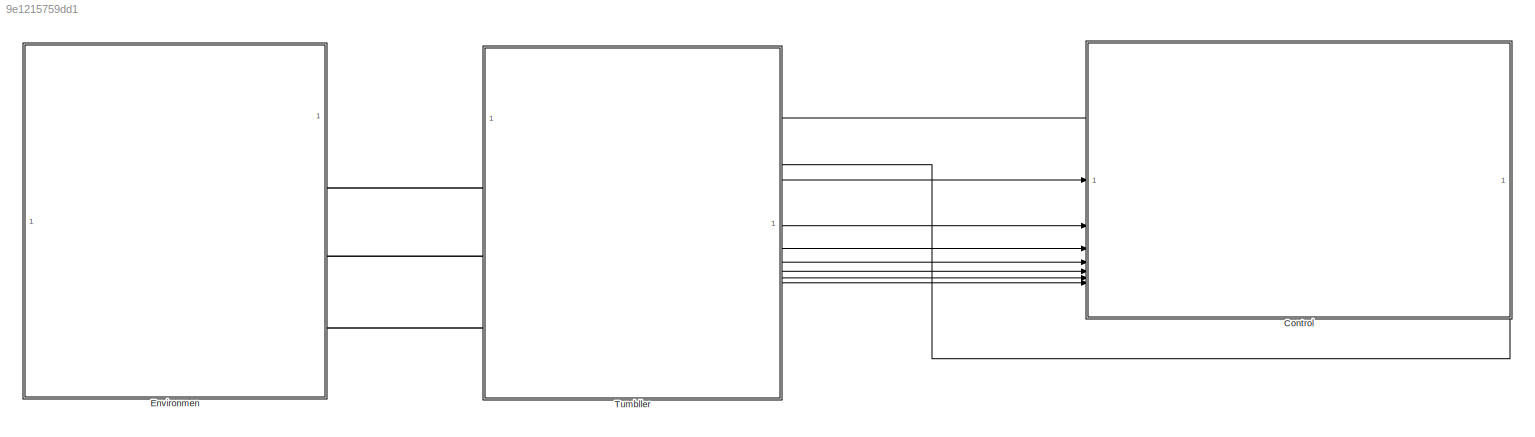
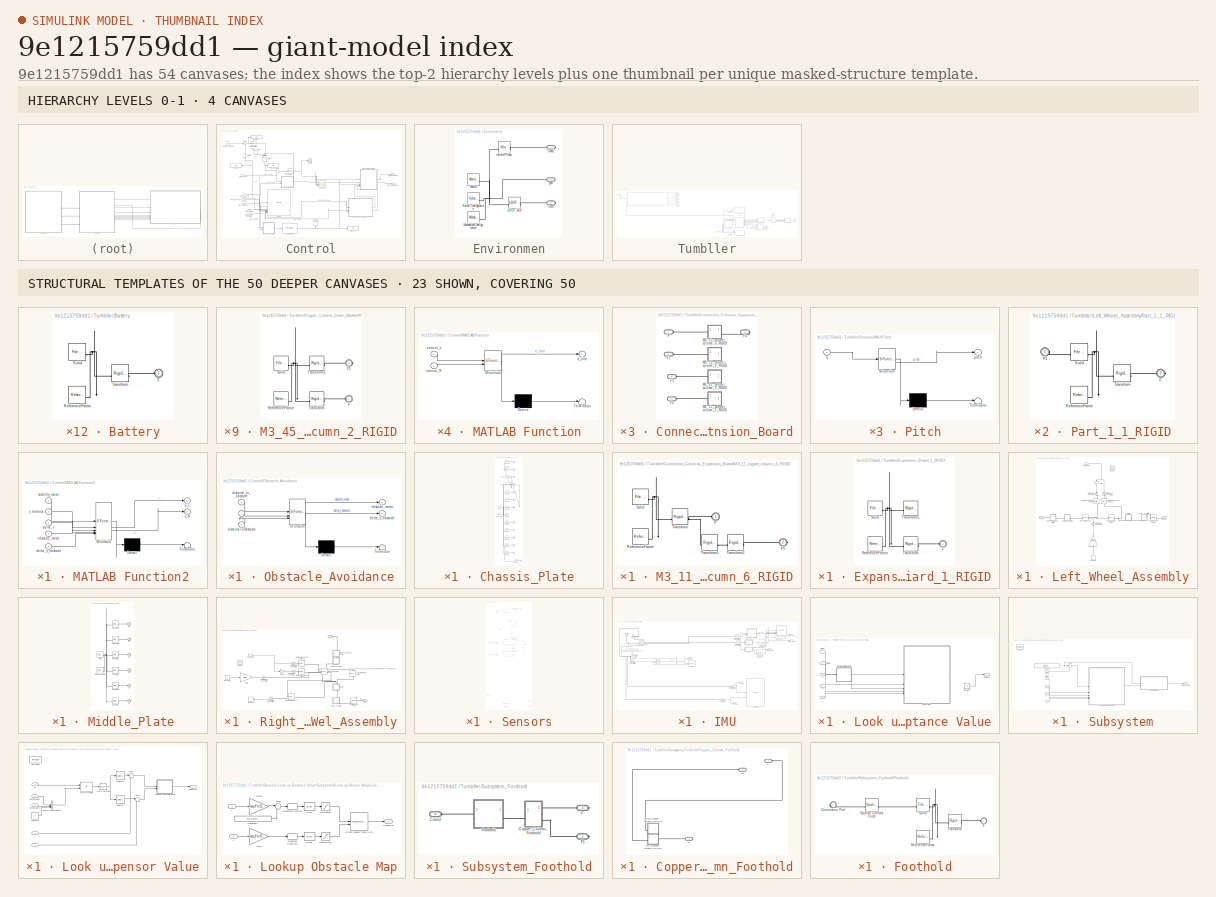
[diagram: thumbnail index - top-2 hierarchy levels (4 canvases) + 23 structural-template representatives of the remaining 50 canvases]
MODEL slx_9e1215759dd1
KIND model
CONFIG AbsTol = auto
CONFIG EnableMultiTasking = off
CONFIG FixedStep = 0.01
CONFIG MaxStep = auto
CONFIG MinStep = auto
CONFIG RelTol = 1e-3
CONFIG SampleTimeConstraint = Unconstrained
CONFIG SolverName = VariableStepAuto
CONFIG StartTime = 0.0
CONFIG StopTime = 300.0
WORKSPACE source: external: MATLAB File  (data not in archive)
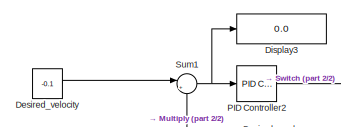
[diagram: Control - part 1/2, top left region]
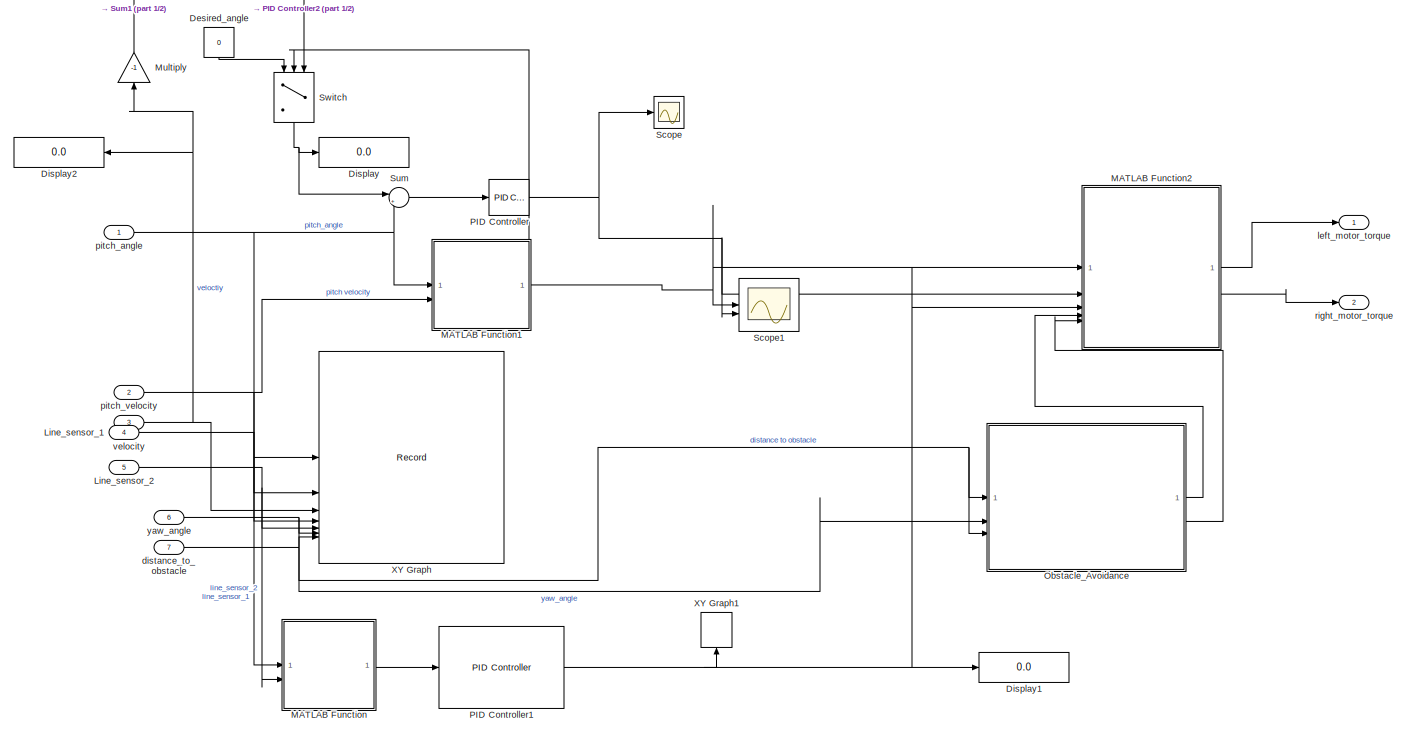
[diagram: Control - part 2/2, most of the canvas]
BLOCK [SubSystem] Control
  PortSchema = {"entries":[{"content":{"sides":[{"content":{"connectorIds":["In1","In2","In3","In4","In5","In6","In7"]},"type":"ConnectorPlacement.EquallySpacedRectSide","uuid":"f714b2c0-4a2a-45d5-ad92-afc10d621f55"},{"content":{"side":"RIGHT"},"type":"ConnectorPlacement.EquallySpacedRectSide","uuid":"32b7e455-4cd7-4a82-8941-30c6734f67e4"},{"content":{"side":"TOP"},"type":"ConnectorPlacement.EquallySpacedRectSid...<+391ch>
BLOCK [Constant] Control/Desired_angle
  NameLocation = top
  Value = 0
BLOCK [Constant] Control/Desired_velocity
  Value = -0.1
BLOCK [Display] Control/Display
  Decimation = 1
BLOCK [Display] Control/Display1
  Decimation = 1
BLOCK [Display] Control/Display2
  Decimation = 1
  NameLocation = top
BLOCK [Display] Control/Display3
  Decimation = 1
BLOCK [Inport] Control/Line_sensor_1
  Port = 4
BLOCK [Inport] Control/Line_sensor_2
  Port = 5
BLOCK [SubSystem] Control/MATLAB Function
  ErrorFcn = Stateflow.Translate.translate
  PermitHierarchicalResolution = ExplicitOnly
  SFBlockType = MATLAB Function
  TreatAsAtomicUnit = on
BLOCK [Demux] Control/MATLAB Function/ Demux 
  Outputs = 1
BLOCK [S-Function] Control/MATLAB Function/ SFunction 
  EnableBusSupport = off
  FunctionName = sf_sfun
  PortCounts = [2 2]
  SFcnIsStateOwnerBlock = off
  SFunctionDeploymentMode = off
  Tag = Stateflow S-Function 3
BLOCK [Terminator] Control/MATLAB Function/ Terminator 
BLOCK [Outport] Control/MATLAB Function/e_line
BLOCK [Inport] Control/MATLAB Function/sensor_L
BLOCK [Inport] Control/MATLAB Function/sensor_R
  Port = 2
BLOCK [SubSystem] Control/MATLAB Function1
  ErrorFcn = Stateflow.Translate.translate
  PermitHierarchicalResolution = ExplicitOnly
  SFBlockType = MATLAB Function
  TreatAsAtomicUnit = on
BLOCK [Demux] Control/MATLAB Function1/ Demux 
  Outputs = 1
BLOCK [S-Function] Control/MATLAB Function1/ SFunction 
  EnableBusSupport = off
  FunctionName = sf_sfun
  PortCounts = [2 2]
  SFcnIsStateOwnerBlock = off
  SFunctionDeploymentMode = off
  Tag = Stateflow S-Function 5
BLOCK [Terminator] Control/MATLAB Function1/ Terminator 
BLOCK [Outport] Control/MATLAB Function1/mode
BLOCK [Inport] Control/MATLAB Function1/theta
BLOCK [Inport] Control/MATLAB Function1/theta_dot
  Port = 2
BLOCK [SubSystem] Control/MATLAB Function2
  ErrorFcn = Stateflow.Translate.translate
  PermitHierarchicalResolution = ExplicitOnly
  SFBlockType = MATLAB Function
  TreatAsAtomicUnit = on
BLOCK [Demux] Control/MATLAB Function2/ Demux 
  Outputs = 1
BLOCK [S-Function] Control/MATLAB Function2/ SFunction 
  EnableBusSupport = off
  FunctionName = sf_sfun
  PortCounts = [5 3]
  SFcnIsStateOwnerBlock = off
  SFunctionDeploymentMode = off
  Tag = Stateflow S-Function 7
BLOCK [Terminator] Control/MATLAB Function2/ Terminator 
BLOCK [Inport] Control/MATLAB Function2/delta_v
  Port = 3
BLOCK [Inport] Control/MATLAB Function2/delta_v_obstacle
  Port = 5
BLOCK [Inport] Control/MATLAB Function2/obstacle_mode
  Port = 4
BLOCK [Inport] Control/MATLAB Function2/stability_mode
BLOCK [Outport] Control/MATLAB Function2/v_L
BLOCK [Outport] Control/MATLAB Function2/v_R
  Port = 2
BLOCK [Inport] Control/MATLAB Function2/v_balance
  Port = 2
BLOCK [Gain] Control/Multiply
  Gain = -1
  NameLocation = right
BLOCK [SubSystem] Control/Obstacle_Avoidance
  ErrorFcn = Stateflow.Translate.translate
  PermitHierarchicalResolution = ExplicitOnly
  SFBlockType = Chart
  TreatAsAtomicUnit = on
BLOCK [Demux] Control/Obstacle_Avoidance/ Demux 
  Outputs = 1
BLOCK [S-Function] Control/Obstacle_Avoidance/ SFunction 
  EnableBusSupport = off
  FunctionName = sf_sfun
  PortCounts = [3 3]
  SFcnIsStateOwnerBlock = off
  SFunctionDeploymentMode = off
  Tag = Stateflow S-Function 6
BLOCK [Terminator] Control/Obstacle_Avoidance/ Terminator 
BLOCK [Outport] Control/Obstacle_Avoidance/delta_v_obstacle
  Port = 2
BLOCK [Inport] Control/Obstacle_Avoidance/distanceToObstacle
  Port = 3
BLOCK [Inport] Control/Obstacle_Avoidance/distance_to_obstacle
BLOCK [Outport] Control/Obstacle_Avoidance/obstacle_mode
BLOCK [Inport] Control/Obstacle_Avoidance/yaw
  Port = 2
BLOCK [Reference] Control/PID Controller  REF=slpidlib/PID Controller
  LibrarySourceBlock = simulink/Continuous/PID Controller
  SourceBlock = slpidlib/PID Controller
  SourceType = PID 1dof
BLOCK [Reference] Control/PID Controller1  REF=slpidlib/PID Controller
  LibrarySourceBlock = simulink/Continuous/PID Controller
  SourceBlock = slpidlib/PID Controller
  SourceType = PID 1dof
BLOCK [Reference] Control/PID Controller2  REF=slpidlib/PID Controller
  LibrarySourceBlock = simulink/Continuous/PID Controller
  SourceBlock = slpidlib/PID Controller
  SourceType = PID 1dof
BLOCK [Scope] Control/Scope
  ActiveDisplayYMaximum = 816.65322499526962
  ActiveDisplayYMinimum = -344.98977874570244
  Floating = off
  GraphicalSettings = {"Style":{"BackgroundColor":[0.12941176470588237,0.12941176470588237,0.12941176470588237],"AxesColor":[0.07058823529411765,0.07058823529411765,0.07058823529411765],"LabelsColor":[0.8509803921568627,0.8509803921568627,0.8509803921568627],"PreserveColors":false,"Visible":[true],"LineStyle":["-"],"LineWidth":[1.5],"BarWidth":[0.9],"LineColor":["auto"],"LineFaceAlpha":[1],"LineEdgeAlpha":[1],"Marker":...<+1988ch>
  MultipleDisplayCache = [{"MaxYLimMag":590.6877782877242,"MaxYLimReal":816.65322499526962,"MinYLimMag":0,"MinYLimReal":-344.98977874570244,"PlotAsMagnitudePhase":false,"ShowGrid":true,"ShowLegend":false,"Title":"%<SignalLabel>","YLabel":""}]
  NumInputPorts = 1
  ScopeFrameLocation = container
  WasSavedAsWebScope = on
  WindowPosition = [95.000000,94.000000,1280.000000,768.000000,]
BLOCK [Scope] Control/Scope1
  ActiveDisplayYMaximum = 3.44885358238637
  ActiveDisplayYMinimum = -2.1726826820679763
  Floating = off
  GraphicalSettings = {"AxesScalingProperties":{"AlignXAxis":"Center","AlignYAxis":"Center","AutoScaleXAxisLimits":false,"AxesScaling":"Manual","AxesScalingNumUpdates":10,"ExpandOnly":true,"ScaleAxesLimitsAtStop":false,"XAxisDataRange":100,"YAxisDataRange":80},"DisplayProperties":{"ColorOrder":["auto","auto","auto","auto","auto","auto","auto","auto","auto","auto","auto","auto","auto","auto","auto","auto","auto","auto",...<+2117ch>
  MultipleDisplayCache = [{"MaxYLimMag":10,"MaxYLimReal":3.44885358238637,"MinYLimMag":0,"MinYLimReal":-2.1726826820679763,"PlotAsMagnitudePhase":false,"ShowGrid":true,"ShowLegend":false,"Title":"%<SignalLabel>","YLabel":""}]
  NumInputPorts = 2
  ScopeFrameLocation = window
  WasSavedAsWebScope = on
  WindowPosition = [455.000000,268.000000,560.000000,420.000000,]
BLOCK [Sum] Control/Sum
  Inputs = |+-
BLOCK [Sum] Control/Sum1
  Inputs = |+-
BLOCK [Switch] Control/Switch
  Criteria = u2 ~= 0
  InputSameDT = off
  NameLocation = left
  SaturateOnIntegerOverflow = off
  ZeroCross = off
BLOCK [Record] Control/XY Graph
  CompatibilityTag = XY
  FileSettingsInternal = {"entries":[{"content":{"excelSettings":{"content":{},"type":"Streamout.ExcelSettings"},"parquetSettings":{"content":{},"type":"Streamout.ParquetSettings"}},"type":"Streamout.FileSettingStorage","uuid":""}],"packageUris":["http:\/\/schema.mathworks.com\/mf0\/streamout_blocks\/R2020a"],"version":"1.0"}  <repeated x8 — deduplicated; at blocks: XY Graph, XY Graph1, pitch_ang_g>
  FrameSettings = Vector(7)\n[0, 0, 0, 0, 0, 0, 0]
  Layout = [1 1]
  NumPorts = 7.0
  SignalsInternal = {"entries":[{"content":{"signals":[{"content":{"blockPath":[],"dimensions":[1],"domain":"","lineColor":"#a2142f","port":1,"sid":[""],"signalID":1,"signalName":"pitch_angle"},"type":"RecordBlkView.Signal","uuid":""},{"content":{"blockPath":[],"dimensions":[1],"domain":"","lineColor":"#139fff","port":2,"sid":[""],"signalID":2,"signalName":"pitch velocity"},"type":"RecordBlkView.Signal","uuid":""},{"...<+1135ch>
BLOCK [Record] Control/XY Graph1
  CompatibilityTag = XY
  FrameSettings = [0, 0]
  Layout = [1 1]
  NameLocation = right
  NumPorts = 2.0
  SignalsInternal = {"entries":[{"content":{"signals":[{"content":{"blockPath":[],"dimensions":[1],"domain":"","lineColor":"#a2142f","plots":[ 1 ],"port":1,"sid":[""],"signalID":1,"signalName":"PID Controller1"},"type":"RecordBlkView.Signal","uuid":""},{"content":{"blockPath":[],"dimensions":[1],"domain":"","lineColor":"#139fff","plots":[ 1 ],"port":2,"sid":[""],"signalID":2},"type":"RecordBlkView.Signal","uuid":""}]...<+145ch>
  VisualizationBindings = {"xyplotplugin":{"info":[{"series":[{"bindingParametersList":[{"parameter":"X-Axis","signalID":1,"signalName":"PID Controller1"},{"parameter":"Y-Axis","signalID":2,"signalName":"XY Graph1:2"}],"seriesID":0}],"subplotID":1}]}}
BLOCK [Inport] Control/distance_to_obstacle
  Port = 7
BLOCK [Outport] Control/left_motor_torque
BLOCK [Inport] Control/pitch_angle
BLOCK [Inport] Control/pitch_velocity
  Port = 2
BLOCK [Outport] Control/right_motor_torque
  Port = 2
BLOCK [Inport] Control/velocity
  Port = 3
BLOCK [Inport] Control/yaw_angle
  Port = 6
BLOCK [SubSystem] Environmen
BLOCK [Reference] Environmen/6-DOF Joint  REF=sm_lib/Joints/6-DOF Joint
  SourceBlock = sm_lib/Joints/6-DOF Joint
  SourceType = 6-DOF Joint
BLOCK [PMIOPort] Environmen/Conn1
  Side = Right
BLOCK [PMIOPort] Environmen/Conn3
  Port = 3
  Side = Right
BLOCK [Reference] Environmen/Infinite Plane  REF=sm_lib/Curves and Surfaces/Infinite Plane
  SourceBlock = sm_lib/Curves and Surfaces/Infinite Plane
  SourceType = Infinite Plane
BLOCK [Reference] Environmen/MechanismConfiguration  REF=sm_lib/Utilities/Mechanism
Configuration
  SourceBlock = sm_lib/Utilities/Mechanism\nConfiguration
  SourceType = Mechanism\nConfiguration
BLOCK [Reference] Environmen/Solver Configuration  REF=nesl_utility/Solver
Configuration
  SourceBlock = nesl_utility/Solver\nConfiguration
  SourceType = Solver\nConfiguration
BLOCK [Reference] Environmen/World  REF=sm_lib/Frames and
Transforms/World Frame
  SourceBlock = sm_lib/Frames and\nTransforms/World Frame
  SourceType = World Frame
BLOCK [PMIOPort] Environmen/port
  Port = 2
  Side = Right
BLOCK [SubSystem] Tumbller
  PortSchema = {"entries":[{"content":{"sides":[{"content":{"connectorIds":["LConn1","LConn2","LConn3"]},"type":"ConnectorPlacement.EquallySpacedRectSide","uuid":"d5763196-933f-4bd3-b35f-8fe846d277d6"},{"content":{"connectorIds":["Out1","Out2","Out3","Out4","Out5","Out6","Out7","In1","In2"],"side":"RIGHT"},"type":"ConnectorPlacement.EquallySpacedRectSide","uuid":"1dce42d0-04bb-4abb-80ce-ccad12812958"},{"content"...<+297ch>
BLOCK [SubSystem] Tumbller/Battery
  NameLocation = right
BLOCK [PMIOPort] Tumbller/Battery/F
  Side = Left
BLOCK [Reference] Tumbller/Battery/ReferenceFrame  REF=sm_lib/Frames and
Transforms/Reference
Frame
  SourceBlock = sm_lib/Frames and\nTransforms/Reference\nFrame
  SourceType = Reference\nFrame
BLOCK [Reference] Tumbller/Battery/Solid  REF=sm_lib/Body Elements/File Solid
  SourceBlock = sm_lib/Body Elements/File Solid
  SourceType = File Solid
BLOCK [Reference] Tumbller/Battery/Transform  REF=sm_lib/Frames and
Transforms/Rigid
Transform
  SourceBlock = sm_lib/Frames and\nTransforms/Rigid\nTransform
  SourceType = Rigid\nTransform
BLOCK [SubSystem] Tumbller/Chassis_Plate
  PortSchema = {"entries":[{"content":{"sides":[{"content":{"connectorIds":["LConn1","LConn2","LConn3"]},"type":"ConnectorPlacement.EquallySpacedRectSide","uuid":"f1a95767-c121-4f08-8c08-5461accf7dee"},{"content":{"connectorIds":["RConn1","RConn2","RConn3","RConn4","RConn5","RConn6","RConn7","RConn8"],"side":"RIGHT"},"type":"ConnectorPlacement.EquallySpacedRectSide","uuid":"9bce41b6-4549-4f06-957d-551c009d69fd"}...<+486ch>
BLOCK [PMIOPort] Tumbller/Chassis_Plate/F
  Side = Left
BLOCK [PMIOPort] Tumbller/Chassis_Plate/F1
  Port = 3
  Side = Left
BLOCK [PMIOPort] Tumbller/Chassis_Plate/F10
  Port = 6
  Side = Right
BLOCK [PMIOPort] Tumbller/Chassis_Plate/F11
  Port = 2
  Side = Left
BLOCK [PMIOPort] Tumbller/Chassis_Plate/F12
  Port = 4
  Side = Left
BLOCK [PMIOPort] Tumbller/Chassis_Plate/F13
  Port = 5
  Side = Right
BLOCK [PMIOPort] Tumbller/Chassis_Plate/F3
  Port = 7
  Side = Right
BLOCK [PMIOPort] Tumbller/Chassis_Plate/F4
  Port = 13
  Side = Right
BLOCK [PMIOPort] Tumbller/Chassis_Plate/F5
  Port = 9
  Side = Right
BLOCK [PMIOPort] Tumbller/Chassis_Plate/F6
  Port = 11
  Side = Right
BLOCK [PMIOPort] Tumbller/Chassis_Plate/F7
  Port = 8
  Side = Right
BLOCK [PMIOPort] Tumbller/Chassis_Plate/F8
  Port = 10
  Side = Right
BLOCK [PMIOPort] Tumbller/Chassis_Plate/F9
  Port = 12
  Side = Right
BLOCK [Reference] Tumbller/Chassis_Plate/ReferenceFrame  REF=sm_lib/Frames and
Transforms/Reference
Frame
  SourceBlock = sm_lib/Frames and\nTransforms/Reference\nFrame
  SourceType = Reference\nFrame
BLOCK [Reference] Tumbller/Chassis_Plate/Solid  REF=sm_lib/Body Elements/File Solid
  SourceBlock = sm_lib/Body Elements/File Solid
  SourceType = File Solid
BLOCK [Reference] Tumbller/Chassis_Plate/Transform  REF=sm_lib/Frames and
Transforms/Rigid
Transform
  SourceBlock = sm_lib/Frames and\nTransforms/Rigid\nTransform
  SourceType = Rigid\nTransform
BLOCK [Reference] Tumbller/Chassis_Plate/Transform1  REF=sm_lib/Frames and
Transforms/Rigid
Transform
  SourceBlock = sm_lib/Frames and\nTransforms/Rigid\nTransform
  SourceType = Rigid\nTransform
BLOCK [Reference] Tumbller/Chassis_Plate/Transform10  REF=sm_lib/Frames and
Transforms/Rigid
Transform
  SourceBlock = sm_lib/Frames and\nTransforms/Rigid\nTransform
  SourceType = Rigid\nTransform
BLOCK [Reference] Tumbller/Chassis_Plate/Transform11  REF=sm_lib/Frames and
Transforms/Rigid
Transform
  SourceBlock = sm_lib/Frames and\nTransforms/Rigid\nTransform
  SourceType = Rigid\nTransform
BLOCK [Reference] Tumbller/Chassis_Plate/Transform12  REF=sm_lib/Frames and
Transforms/Rigid
Transform
  SourceBlock = sm_lib/Frames and\nTransforms/Rigid\nTransform
  SourceType = Rigid\nTransform
BLOCK [Reference] Tumbller/Chassis_Plate/Transform13  REF=sm_lib/Frames and
Transforms/Rigid
Transform
  SourceBlock = sm_lib/Frames and\nTransforms/Rigid\nTransform
  SourceType = Rigid\nTransform
BLOCK [Reference] Tumbller/Chassis_Plate/Transform2  REF=sm_lib/Frames and
Transforms/Rigid
Transform
  Commented = on
  SourceBlock = sm_lib/Frames and\nTransforms/Rigid\nTransform
  SourceType = Rigid\nTransform
BLOCK [Reference] Tumbller/Chassis_Plate/Transform3  REF=sm_lib/Frames and
Transforms/Rigid
Transform
  SourceBlock = sm_lib/Frames and\nTransforms/Rigid\nTransform
  SourceType = Rigid\nTransform
BLOCK [Reference] Tumbller/Chassis_Plate/Transform4  REF=sm_lib/Frames and
Transforms/Rigid
Transform
  SourceBlock = sm_lib/Frames and\nTransforms/Rigid\nTransform
  SourceType = Rigid\nTransform
BLOCK [Reference] Tumbller/Chassis_Plate/Transform5  REF=sm_lib/Frames and
Transforms/Rigid
Transform
  SourceBlock = sm_lib/Frames and\nTransforms/Rigid\nTransform
  SourceType = Rigid\nTransform
BLOCK [Reference] Tumbller/Chassis_Plate/Transform6  REF=sm_lib/Frames and
Transforms/Rigid
Transform
  SourceBlock = sm_lib/Frames and\nTransforms/Rigid\nTransform
  SourceType = Rigid\nTransform
BLOCK [Reference] Tumbller/Chassis_Plate/Transform7  REF=sm_lib/Frames and
Transforms/Rigid
Transform
  SourceBlock = sm_lib/Frames and\nTransforms/Rigid\nTransform
  SourceType = Rigid\nTransform
BLOCK [Reference] Tumbller/Chassis_Plate/Transform8  REF=sm_lib/Frames and
Transforms/Rigid
Transform
  SourceBlock = sm_lib/Frames and\nTransforms/Rigid\nTransform
  SourceType = Rigid\nTransform
BLOCK [Reference] Tumbller/Chassis_Plate/Transform9  REF=sm_lib/Frames and
Transforms/Rigid
Transform
  SourceBlock = sm_lib/Frames and\nTransforms/Rigid\nTransform
  SourceType = Rigid\nTransform
BLOCK [SubSystem] Tumbller/Connection_Columns_Expansion_Board
BLOCK [PMIOPort] Tumbller/Connection_Columns_Expansion_Board/F
  Side = Left
BLOCK [PMIOPort] Tumbller/Connection_Columns_Expansion_Board/F1
  Port = 2
  Side = Left
BLOCK [PMIOPort] Tumbller/Connection_Columns_Expansion_Board/F2
  Port = 3
  Side = Left
BLOCK [PMIOPort] Tumbller/Connection_Columns_Expansion_Board/F3
  Port = 4
  Side = Left
BLOCK [PMIOPort] Tumbller/Connection_Columns_Expansion_Board/F4
  Port = 5
  Side = Right
BLOCK [SubSystem] Tumbller/Connection_Columns_Expansion_Board/M3_11_copper_column_3_RIGID
BLOCK [PMIOPort] Tumbller/Connection_Columns_Expansion_Board/M3_11_copper_column_3_RIGID/F
  Side = Left
BLOCK [Reference] Tumbller/Connection_Columns_Expansion_Board/M3_11_copper_column_3_RIGID/ReferenceFrame  REF=sm_lib/Frames and
Transforms/Reference
Frame
  SourceBlock = sm_lib/Frames and\nTransforms/Reference\nFrame
  SourceType = Reference\nFrame
BLOCK [Reference] Tumbller/Connection_Columns_Expansion_Board/M3_11_copper_column_3_RIGID/Solid  REF=sm_lib/Body Elements/File Solid
  SourceBlock = sm_lib/Body Elements/File Solid
  SourceType = File Solid
BLOCK [Reference] Tumbller/Connection_Columns_Expansion_Board/M3_11_copper_column_3_RIGID/Transform  REF=sm_lib/Frames and
Transforms/Rigid
Transform
  SourceBlock = sm_lib/Frames and\nTransforms/Rigid\nTransform
  SourceType = Rigid\nTransform
BLOCK [SubSystem] Tumbller/Connection_Columns_Expansion_Board/M3_11_copper_column_4_RIGID
BLOCK [PMIOPort] Tumbller/Connection_Columns_Expansion_Board/M3_11_copper_column_4_RIGID/F
  Side = Left
BLOCK [Reference] Tumbller/Connection_Columns_Expansion_Board/M3_11_copper_column_4_RIGID/ReferenceFrame  REF=sm_lib/Frames and
Transforms/Reference
Frame
  SourceBlock = sm_lib/Frames and\nTransforms/Reference\nFrame
  SourceType = Reference\nFrame
BLOCK [Reference] Tumbller/Connection_Columns_Expansion_Board/M3_11_copper_column_4_RIGID/Solid  REF=sm_lib/Body Elements/File Solid
  SourceBlock = sm_lib/Body Elements/File Solid
  SourceType = File Solid
BLOCK [Reference] Tumbller/Connection_Columns_Expansion_Board/M3_11_copper_column_4_RIGID/Transform  REF=sm_lib/Frames and
Transforms/Rigid
Transform
  SourceBlock = sm_lib/Frames and\nTransforms/Rigid\nTransform
  SourceType = Rigid\nTransform
BLOCK [SubSystem] Tumbller/Connection_Columns_Expansion_Board/M3_11_copper_column_5_RIGID
BLOCK [PMIOPort] Tumbller/Connection_Columns_Expansion_Board/M3_11_copper_column_5_RIGID/F
  Side = Left
BLOCK [Reference] Tumbller/Connection_Columns_Expansion_Board/M3_11_copper_column_5_RIGID/ReferenceFrame  REF=sm_lib/Frames and
Transforms/Reference
Frame
  SourceBlock = sm_lib/Frames and\nTransforms/Reference\nFrame
  SourceType = Reference\nFrame
BLOCK [Reference] Tumbller/Connection_Columns_Expansion_Board/M3_11_copper_column_5_RIGID/Solid  REF=sm_lib/Body Elements/File Solid
  SourceBlock = sm_lib/Body Elements/File Solid
  SourceType = File Solid
BLOCK [Reference] Tumbller/Connection_Columns_Expansion_Board/M3_11_copper_column_5_RIGID/Transform  REF=sm_lib/Frames and
Transforms/Rigid
Transform
  SourceBlock = sm_lib/Frames and\nTransforms/Rigid\nTransform
  SourceType = Rigid\nTransform
BLOCK [SubSystem] Tumbller/Connection_Columns_Expansion_Board/M3_11_copper_column_6_RIGID
BLOCK [PMIOPort] Tumbller/Connection_Columns_Expansion_Board/M3_11_copper_column_6_RIGID/F
  Side = Left
BLOCK [PMIOPort] Tumbller/Connection_Columns_Expansion_Board/M3_11_copper_column_6_RIGID/F1
  Port = 2
  Side = Right
BLOCK [Reference] Tumbller/Connection_Columns_Expansion_Board/M3_11_copper_column_6_RIGID/ReferenceFrame  REF=sm_lib/Frames and
Transforms/Reference
Frame
  SourceBlock = sm_lib/Frames and\nTransforms/Reference\nFrame
  SourceType = Reference\nFrame
BLOCK [Reference] Tumbller/Connection_Columns_Expansion_Board/M3_11_copper_column_6_RIGID/Solid  REF=sm_lib/Body Elements/File Solid
  SourceBlock = sm_lib/Body Elements/File Solid
  SourceType = File Solid
BLOCK [Reference] Tumbller/Connection_Columns_Expansion_Board/M3_11_copper_column_6_RIGID/Transform  REF=sm_lib/Frames and
Transforms/Rigid
Transform
  SourceBlock = sm_lib/Frames and\nTransforms/Rigid\nTransform
  SourceType = Rigid\nTransform
BLOCK [Reference] Tumbller/Connection_Columns_Expansion_Board/M3_11_copper_column_6_RIGID/Transform1  REF=sm_lib/Frames and
Transforms/Rigid
Transform
  SourceBlock = sm_lib/Frames and\nTransforms/Rigid\nTransform
  SourceType = Rigid\nTransform
BLOCK [Reference] Tumbller/Connection_Columns_Expansion_Board/M3_11_copper_column_6_RIGID/Transform2  REF=sm_lib/Frames and
Transforms/Rigid
Transform
  SourceBlock = sm_lib/Frames and\nTransforms/Rigid\nTransform
  SourceType = Rigid\nTransform
BLOCK [SubSystem] Tumbller/Copper _Colums_Down_Middle
BLOCK [PMIOPort] Tumbller/Copper _Colums_Down_Middle/F
  NameLocation = top
  Side = Left
BLOCK [PMIOPort] Tumbller/Copper _Colums_Down_Middle/F1
  Port = 5
  Side = Right
BLOCK [PMIOPort] Tumbller/Copper _Colums_Down_Middle/F2
  Port = 2
  Side = Left
BLOCK [PMIOPort] Tumbller/Copper _Colums_Down_Middle/F3
  Port = 3
  Side = Left
BLOCK [PMIOPort] Tumbller/Copper _Colums_Down_Middle/F4
  NameLocation = top
  Port = 4
  Side = Left
BLOCK [SubSystem] Tumbller/Copper _Colums_Down_Middle/M3_45_copper_column_1_RIGID
BLOCK [PMIOPort] Tumbller/Copper _Colums_Down_Middle/M3_45_copper_column_1_RIGID/F
  Side = Left
BLOCK [Reference] Tumbller/Copper _Colums_Down_Middle/M3_45_copper_column_1_RIGID/ReferenceFrame  REF=sm_lib/Frames and
Transforms/Reference
Frame
  SourceBlock = sm_lib/Frames and\nTransforms/Reference\nFrame
  SourceType = Reference\nFrame
BLOCK [Reference] Tumbller/Copper _Colums_Down_Middle/M3_45_copper_column_1_RIGID/Solid  REF=sm_lib/Body Elements/File Solid
  SourceBlock = sm_lib/Body Elements/File Solid
  SourceType = File Solid
BLOCK [Reference] Tumbller/Copper _Colums_Down_Middle/M3_45_copper_column_1_RIGID/Transform  REF=sm_lib/Frames and
Transforms/Rigid
Transform
  SourceBlock = sm_lib/Frames and\nTransforms/Rigid\nTransform
  SourceType = Rigid\nTransform
BLOCK [SubSystem] Tumbller/Copper _Colums_Down_Middle/M3_45_copper_column_2_RIGID
BLOCK [PMIOPort] Tumbller/Copper _Colums_Down_Middle/M3_45_copper_column_2_RIGID/F
  Side = Left
BLOCK [PMIOPort] Tumbller/Copper _Colums_Down_Middle/M3_45_copper_column_2_RIGID/F1
  Port = 2
  Side = Right
BLOCK [Reference] Tumbller/Copper _Colums_Down_Middle/M3_45_copper_column_2_RIGID/ReferenceFrame  REF=sm_lib/Frames and
Transforms/Reference
Frame
  SourceBlock = sm_lib/Frames and\nTransforms/Reference\nFrame
  SourceType = Reference\nFrame
BLOCK [Reference] Tumbller/Copper _Colums_Down_Middle/M3_45_copper_column_2_RIGID/Solid  REF=sm_lib/Body Elements/File Solid
  SourceBlock = sm_lib/Body Elements/File Solid
  SourceType = File Solid
BLOCK [Reference] Tumbller/Copper _Colums_Down_Middle/M3_45_copper_column_2_RIGID/Transform  REF=sm_lib/Frames and
Transforms/Rigid
Transform
  SourceBlock = sm_lib/Frames and\nTransforms/Rigid\nTransform
  SourceType = Rigid\nTransform
BLOCK [Reference] Tumbller/Copper _Colums_Down_Middle/M3_45_copper_column_2_RIGID/Transform1  REF=sm_lib/Frames and
Transforms/Rigid
Transform
  SourceBlock = sm_lib/Frames and\nTransforms/Rigid\nTransform
  SourceType = Rigid\nTransform
BLOCK [SubSystem] Tumbller/Copper _Colums_Down_Middle/M3_45_copper_column_3_RIGID
BLOCK [PMIOPort] Tumbller/Copper _Colums_Down_Middle/M3_45_copper_column_3_RIGID/F
  Side = Left
BLOCK [Reference] Tumbller/Copper _Colums_Down_Middle/M3_45_copper_column_3_RIGID/ReferenceFrame  REF=sm_lib/Frames and
Transforms/Reference
Frame
  SourceBlock = sm_lib/Frames and\nTransforms/Reference\nFrame
  SourceType = Reference\nFrame
BLOCK [Reference] Tumbller/Copper _Colums_Down_Middle/M3_45_copper_column_3_RIGID/Solid  REF=sm_lib/Body Elements/File Solid
  SourceBlock = sm_lib/Body Elements/File Solid
  SourceType = File Solid
BLOCK [Reference] Tumbller/Copper _Colums_Down_Middle/M3_45_copper_column_3_RIGID/Transform  REF=sm_lib/Frames and
Transforms/Rigid
Transform
  SourceBlock = sm_lib/Frames and\nTransforms/Rigid\nTransform
  SourceType = Rigid\nTransform
BLOCK [SubSystem] Tumbller/Copper _Colums_Down_Middle/M3_45_copper_column_4_RIGID
BLOCK [PMIOPort] Tumbller/Copper _Colums_Down_Middle/M3_45_copper_column_4_RIGID/F
  Side = Left
BLOCK [Reference] Tumbller/Copper _Colums_Down_Middle/M3_45_copper_column_4_RIGID/ReferenceFrame  REF=sm_lib/Frames and
Transforms/Reference
Frame
  SourceBlock = sm_lib/Frames and\nTransforms/Reference\nFrame
  SourceType = Reference\nFrame
BLOCK [Reference] Tumbller/Copper _Colums_Down_Middle/M3_45_copper_column_4_RIGID/Solid  REF=sm_lib/Body Elements/File Solid
  SourceBlock = sm_lib/Body Elements/File Solid
  SourceType = File Solid
BLOCK [Reference] Tumbller/Copper _Colums_Down_Middle/M3_45_copper_column_4_RIGID/Transform  REF=sm_lib/Frames and
Transforms/Rigid
Transform
  SourceBlock = sm_lib/Frames and\nTransforms/Rigid\nTransform
  SourceType = Rigid\nTransform
BLOCK [SubSystem] Tumbller/Copper_Columns_Middle_Top
BLOCK [PMIOPort] Tumbller/Copper_Columns_Middle_Top/F
  Port = 2
  Side = Left
BLOCK [PMIOPort] Tumbller/Copper_Columns_Middle_Top/F1
  Side = Left
BLOCK [PMIOPort] Tumbller/Copper_Columns_Middle_Top/F2
  Port = 3
  Side = Right
BLOCK [PMIOPort] Tumbller/Copper_Columns_Middle_Top/F3
  Port = 4
  Side = Left
BLOCK [PMIOPort] Tumbller/Copper_Columns_Middle_Top/F4
  Port = 5
  Side = Left
BLOCK [SubSystem] Tumbller/Copper_Columns_Middle_Top/M3_23_copper_column_1_RIGID
BLOCK [PMIOPort] Tumbller/Copper_Columns_Middle_Top/M3_23_copper_column_1_RIGID/F
  Side = Left
BLOCK [Reference] Tumbller/Copper_Columns_Middle_Top/M3_23_copper_column_1_RIGID/ReferenceFrame  REF=sm_lib/Frames and
Transforms/Reference
Frame
  SourceBlock = sm_lib/Frames and\nTransforms/Reference\nFrame
  SourceType = Reference\nFrame
BLOCK [Reference] Tumbller/Copper_Columns_Middle_Top/M3_23_copper_column_1_RIGID/Solid  REF=sm_lib/Body Elements/File Solid
  SourceBlock = sm_lib/Body Elements/File Solid
  SourceType = File Solid
BLOCK [Reference] Tumbller/Copper_Columns_Middle_Top/M3_23_copper_column_1_RIGID/Transform  REF=sm_lib/Frames and
Transforms/Rigid
Transform
  SourceBlock = sm_lib/Frames and\nTransforms/Rigid\nTransform
  SourceType = Rigid\nTransform
BLOCK [SubSystem] Tumbller/Copper_Columns_Middle_Top/M3_23_copper_column_2_RIGID
BLOCK [PMIOPort] Tumbller/Copper_Columns_Middle_Top/M3_23_copper_column_2_RIGID/F
  Side = Left
BLOCK [Reference] Tumbller/Copper_Columns_Middle_Top/M3_23_copper_column_2_RIGID/ReferenceFrame  REF=sm_lib/Frames and
Transforms/Reference
Frame
  SourceBlock = sm_lib/Frames and\nTransforms/Reference\nFrame
  SourceType = Reference\nFrame
BLOCK [Reference] Tumbller/Copper_Columns_Middle_Top/M3_23_copper_column_2_RIGID/Solid  REF=sm_lib/Body Elements/File Solid
  SourceBlock = sm_lib/Body Elements/File Solid
  SourceType = File Solid
BLOCK [Reference] Tumbller/Copper_Columns_Middle_Top/M3_23_copper_column_2_RIGID/Transform  REF=sm_lib/Frames and
Transforms/Rigid
Transform
  SourceBlock = sm_lib/Frames and\nTransforms/Rigid\nTransform
  SourceType = Rigid\nTransform
BLOCK [SubSystem] Tumbller/Copper_Columns_Middle_Top/M3_23_copper_column_3_RIGID
BLOCK [PMIOPort] Tumbller/Copper_Columns_Middle_Top/M3_23_copper_column_3_RIGID/F
  Side = Left
BLOCK [Reference] Tumbller/Copper_Columns_Middle_Top/M3_23_copper_column_3_RIGID/ReferenceFrame  REF=sm_lib/Frames and
Transforms/Reference
Frame
  SourceBlock = sm_lib/Frames and\nTransforms/Reference\nFrame
  SourceType = Reference\nFrame
BLOCK [Reference] Tumbller/Copper_Columns_Middle_Top/M3_23_copper_column_3_RIGID/Solid  REF=sm_lib/Body Elements/File Solid
  SourceBlock = sm_lib/Body Elements/File Solid
  SourceType = File Solid
BLOCK [Reference] Tumbller/Copper_Columns_Middle_Top/M3_23_copper_column_3_RIGID/Transform  REF=sm_lib/Frames and
Transforms/Rigid
Transform
  SourceBlock = sm_lib/Frames and\nTransforms/Rigid\nTransform
  SourceType = Rigid\nTransform
BLOCK [SubSystem] Tumbller/Copper_Columns_Middle_Top/M3_23_copper_column_4_RIGID
BLOCK [PMIOPort] Tumbller/Copper_Columns_Middle_Top/M3_23_copper_column_4_RIGID/F
  Port = 2
  Side = Right
BLOCK [PMIOPort] Tumbller/Copper_Columns_Middle_Top/M3_23_copper_column_4_RIGID/F1
  Side = Left
BLOCK [Reference] Tumbller/Copper_Columns_Middle_Top/M3_23_copper_column_4_RIGID/ReferenceFrame  REF=sm_lib/Frames and
Transforms/Reference
Frame
  SourceBlock = sm_lib/Frames and\nTransforms/Reference\nFrame
  SourceType = Reference\nFrame
BLOCK [Reference] Tumbller/Copper_Columns_Middle_Top/M3_23_copper_column_4_RIGID/Solid  REF=sm_lib/Body Elements/File Solid
  SourceBlock = sm_lib/Body Elements/File Solid
  SourceType = File Solid
BLOCK [Reference] Tumbller/Copper_Columns_Middle_Top/M3_23_copper_column_4_RIGID/Transform  REF=sm_lib/Frames and
Transforms/Rigid
Transform
  SourceBlock = sm_lib/Frames and\nTransforms/Rigid\nTransform
  SourceType = Rigid\nTransform
BLOCK [Reference] Tumbller/Copper_Columns_Middle_Top/M3_23_copper_column_4_RIGID/Transform1  REF=sm_lib/Frames and
Transforms/Rigid
Transform
  SourceBlock = sm_lib/Frames and\nTransforms/Rigid\nTransform
  SourceType = Rigid\nTransform
BLOCK [SubSystem] Tumbller/Expansion_Board_1_RIGID
BLOCK [PMIOPort] Tumbller/Expansion_Board_1_RIGID/F
  Side = Left
BLOCK [Reference] Tumbller/Expansion_Board_1_RIGID/ReferenceFrame  REF=sm_lib/Frames and
Transforms/Reference
Frame
  SourceBlock = sm_lib/Frames and\nTransforms/Reference\nFrame
  SourceType = Reference\nFrame
BLOCK [Reference] Tumbller/Expansion_Board_1_RIGID/Solid  REF=sm_lib/Body Elements/File Solid
  SourceBlock = sm_lib/Body Elements/File Solid
  SourceType = File Solid
BLOCK [Reference] Tumbller/Expansion_Board_1_RIGID/Transform  REF=sm_lib/Frames and
Transforms/Rigid
Transform
  SourceBlock = sm_lib/Frames and\nTransforms/Rigid\nTransform
  SourceType = Rigid\nTransform
BLOCK [Reference] Tumbller/Expansion_Board_1_RIGID/Transform1  REF=sm_lib/Frames and
Transforms/Rigid
Transform
  SourceBlock = sm_lib/Frames and\nTransforms/Rigid\nTransform
  SourceType = Rigid\nTransform
BLOCK [PMIOPort] Tumbller/F2
  Side = Left
BLOCK [SubSystem] Tumbller/Left_Wheel_Assembly
  PortSchema = {"entries":[{"content":{"sides":[{"content":{"connectorIds":["LConn1","In1"]},"type":"ConnectorPlacement.EquallySpacedRectSide","uuid":"ba31c9e1-9992-48db-b5cd-0a92f647c930"},{"content":{"side":"RIGHT"},"type":"ConnectorPlacement.EquallySpacedRectSide","uuid":"158e5e30-1dbb-4627-8a15-16587daf906e"},{"content":{"side":"TOP"},"type":"ConnectorPlacement.EquallySpacedRectSide","uuid":"244781a0-af75-4b...<+359ch>
BLOCK [Reference] Tumbller/Left_Wheel_Assembly/Actuated Wheel Joint  REF=sm_lib/Joints/Revolute Joint
  NameLocation = top
  SourceBlock = sm_lib/Joints/Revolute Joint
  SourceType = Revolute Joint
BLOCK [Reference] Tumbller/Left_Wheel_Assembly/Body Pitch Joint  REF=sm_lib/Joints/Revolute Joint
  NameLocation = top
  SourceBlock = sm_lib/Joints/Revolute Joint
  SourceType = Revolute Joint
BLOCK [PMIOPort] Tumbller/Left_Wheel_Assembly/Conn2
  NameLocation = top
  Port = 2
  Side = Left
BLOCK [Constant] Tumbller/Left_Wheel_Assembly/Constant
  NameLocation = right
  Value = 0
BLOCK [SubSystem] Tumbller/Left_Wheel_Assembly/Engine_1_RIGID
BLOCK [PMIOPort] Tumbller/Left_Wheel_Assembly/Engine_1_RIGID/F
  Port = 2
  Side = Right
BLOCK [PMIOPort] Tumbller/Left_Wheel_Assembly/Engine_1_RIGID/F1
  Side = Left
BLOCK [Reference] Tumbller/Left_Wheel_Assembly/Engine_1_RIGID/ReferenceFrame  REF=sm_lib/Frames and
Transforms/Reference
Frame
  SourceBlock = sm_lib/Frames and\nTransforms/Reference\nFrame
  SourceType = Reference\nFrame
BLOCK [Reference] Tumbller/Left_Wheel_Assembly/Engine_1_RIGID/Solid  REF=sm_lib/Body Elements/File Solid
  SourceBlock = sm_lib/Body Elements/File Solid
  SourceType = File Solid
BLOCK [Reference] Tumbller/Left_Wheel_Assembly/Engine_1_RIGID/Transform  REF=sm_lib/Frames and
Transforms/Rigid
Transform
  SourceBlock = sm_lib/Frames and\nTransforms/Rigid\nTransform
  SourceType = Rigid\nTransform
BLOCK [Reference] Tumbller/Left_Wheel_Assembly/Engine_1_RIGID/Transform1  REF=sm_lib/Frames and
Transforms/Rigid
Transform
  SourceBlock = sm_lib/Frames and\nTransforms/Rigid\nTransform
  SourceType = Rigid\nTransform
BLOCK [SubSystem] Tumbller/Left_Wheel_Assembly/Engine_Mount_1_RIGID
BLOCK [PMIOPort] Tumbller/Left_Wheel_Assembly/Engine_Mount_1_RIGID/F
  Side = Left
BLOCK [PMIOPort] Tumbller/Left_Wheel_Assembly/Engine_Mount_1_RIGID/F1
  Port = 2
  Side = Right
BLOCK [Reference] Tumbller/Left_Wheel_Assembly/Engine_Mount_1_RIGID/ReferenceFrame  REF=sm_lib/Frames and
Transforms/Reference
Frame
  SourceBlock = sm_lib/Frames and\nTransforms/Reference\nFrame
  SourceType = Reference\nFrame
BLOCK [Reference] Tumbller/Left_Wheel_Assembly/Engine_Mount_1_RIGID/Solid  REF=sm_lib/Body Elements/File Solid
  SourceBlock = sm_lib/Body Elements/File Solid
  SourceType = File Solid
BLOCK [Reference] Tumbller/Left_Wheel_Assembly/Engine_Mount_1_RIGID/Transform  REF=sm_lib/Frames and
Transforms/Rigid
Transform
  SourceBlock = sm_lib/Frames and\nTransforms/Rigid\nTransform
  SourceType = Rigid\nTransform
BLOCK [Reference] Tumbller/Left_Wheel_Assembly/Engine_Mount_1_RIGID/Transform1  REF=sm_lib/Frames and
Transforms/Rigid
Transform
  SourceBlock = sm_lib/Frames and\nTransforms/Rigid\nTransform
  SourceType = Rigid\nTransform
BLOCK [Reference] Tumbller/Left_Wheel_Assembly/External Force and Torque  REF=sm_lib/Forces and
Torques/External Force
and Torque
  NameLocation = left
  SourceBlock = sm_lib/Forces and\nTorques/External Force\nand Torque
  SourceType = External Force\nand Torque
BLOCK [Reference] Tumbller/Left_Wheel_Assembly/External Force and Torque1  REF=sm_lib/Forces and
Torques/External Force
and Torque
  NameLocation = left
  SourceBlock = sm_lib/Forces and\nTorques/External Force\nand Torque
  SourceType = External Force\nand Torque
BLOCK [PMIOPort] Tumbller/Left_Wheel_Assembly/F
  Side = Right
BLOCK [SubSystem] Tumbller/Left_Wheel_Assembly/Felge
  PortSchema = {"entries":[{"content":{"sides":[{"content":{},"type":"ConnectorPlacement.EquallySpacedRectSide","uuid":"2f26a8af-1e10-40ed-afc5-105f5cd0943c"},{"content":{"side":"RIGHT"},"type":"ConnectorPlacement.EquallySpacedRectSide","uuid":"d2c3e2db-1e2a-4c10-8b21-1d34410ad406"},{"content":{"connectorIds":["LConn1"],"side":"TOP"},"type":"ConnectorPlacement.EquallySpacedRectSide","uuid":"4f739f0c-7fbd-4c56-af...<+354ch>
BLOCK [PMIOPort] Tumbller/Left_Wheel_Assembly/Felge/F
  Port = 2
  Side = Right
BLOCK [PMIOPort] Tumbller/Left_Wheel_Assembly/Felge/F1
  Side = Left
BLOCK [Reference] Tumbller/Left_Wheel_Assembly/Felge/ReferenceFrame  REF=sm_lib/Frames and
Transforms/Reference
Frame
  SourceBlock = sm_lib/Frames and\nTransforms/Reference\nFrame
  SourceType = Reference\nFrame
BLOCK [Reference] Tumbller/Left_Wheel_Assembly/Felge/Solid  REF=sm_lib/Body Elements/File Solid
  SourceBlock = sm_lib/Body Elements/File Solid
  SourceType = File Solid
BLOCK [Reference] Tumbller/Left_Wheel_Assembly/Felge/Transform  REF=sm_lib/Frames and
Transforms/Rigid
Transform
  SourceBlock = sm_lib/Frames and\nTransforms/Rigid\nTransform
  SourceType = Rigid\nTransform
BLOCK [Reference] Tumbller/Left_Wheel_Assembly/Felge/Transform1  REF=sm_lib/Frames and
Transforms/Rigid
Transform
  SourceBlock = sm_lib/Frames and\nTransforms/Rigid\nTransform
  SourceType = Rigid\nTransform
BLOCK [Gain] Tumbller/Left_Wheel_Assembly/Gain
  Gain = pi/180
  NameLocation = right
BLOCK [Gain] Tumbller/Left_Wheel_Assembly/Gain2
  Gain = -1
  NameLocation = left
BLOCK [SubSystem] Tumbller/Left_Wheel_Assembly/Part_1_1_RIGID
  PortSchema = {"entries":[{"content":{"sides":[{"content":{},"type":"ConnectorPlacement.EquallySpacedRectSide","uuid":"2f26a8af-1e10-40ed-afc5-105f5cd0943c"},{"content":{"side":"RIGHT"},"type":"ConnectorPlacement.EquallySpacedRectSide","uuid":"d2c3e2db-1e2a-4c10-8b21-1d34410ad406"},{"content":{"connectorIds":["LConn1"],"side":"TOP"},"type":"ConnectorPlacement.EquallySpacedRectSide","uuid":"4f739f0c-7fbd-4c56-af...<+354ch>
BLOCK [PMIOPort] Tumbller/Left_Wheel_Assembly/Part_1_1_RIGID/F
  Port = 2
  Side = Right
BLOCK [PMIOPort] Tumbller/Left_Wheel_Assembly/Part_1_1_RIGID/F1
  NameLocation = top
  Side = Left
BLOCK [Reference] Tumbller/Left_Wheel_Assembly/Part_1_1_RIGID/ReferenceFrame  REF=sm_lib/Frames and
Transforms/Reference
Frame
  SourceBlock = sm_lib/Frames and\nTransforms/Reference\nFrame
  SourceType = Reference\nFrame
BLOCK [Reference] Tumbller/Left_Wheel_Assembly/Part_1_1_RIGID/Solid  REF=sm_lib/Body Elements/File Solid
  SourceBlock = sm_lib/Body Elements/File Solid
  SourceType = File Solid
BLOCK [Reference] Tumbller/Left_Wheel_Assembly/Part_1_1_RIGID/Transform  REF=sm_lib/Frames and
Transforms/Rigid
Transform
  SourceBlock = sm_lib/Frames and\nTransforms/Rigid\nTransform
  SourceType = Rigid\nTransform
BLOCK [Reference] Tumbller/Left_Wheel_Assembly/Ramp  REF=simulink/Sources/Ramp
  Commented = on
  NameLocation = left
  SourceBlock = simulink/Sources/Ramp
  SourceType = Ramp
BLOCK [Reference] Tumbller/Left_Wheel_Assembly/Simulink-PS Converter  REF=nesl_utility/Simulink-PS
Converter
  NameLocation = left
  SourceBlock = nesl_utility/Simulink-PS\nConverter
  SourceType = Simulink-PS\nConverter
BLOCK [Reference] Tumbller/Left_Wheel_Assembly/Simulink-PS Converter1  REF=nesl_utility/Simulink-PS
Converter
  NameLocation = left
  SourceBlock = nesl_utility/Simulink-PS\nConverter
  SourceType = Simulink-PS\nConverter
BLOCK [Reference] Tumbller/Left_Wheel_Assembly/Simulink-PS Converter2  REF=nesl_utility/Simulink-PS
Converter
  NameLocation = right
  SourceBlock = nesl_utility/Simulink-PS\nConverter
  SourceType = Simulink-PS\nConverter
BLOCK [Reference] Tumbller/Left_Wheel_Assembly/Spatial Contact Force  REF=sm_lib/Forces and
Torques/Spatial
Contact Force
  NameLocation = top
  SourceBlock = sm_lib/Forces and\nTorques/Spatial\nContact Force
  SourceType = Spatial\nContact Force
BLOCK [Inport] Tumbller/Left_Wheel_Assembly/balancing
BLOCK [Outport] Tumbller/Line_sensor_1
  Port = 4
BLOCK [Outport] Tumbller/Line_sensor_2
  Port = 5
BLOCK [SubSystem] Tumbller/Middle_Plate
  PortSchema = {"entries":[{"content":{"sides":[{"content":{"connectorIds":["LConn1"]},"type":"ConnectorPlacement.EquallySpacedRectSide","uuid":"61daf810-3479-439a-89bb-d9aa147e634b"},{"content":{"connectorIds":["RConn1","RConn2","RConn3","RConn4"],"side":"RIGHT"},"type":"ConnectorPlacement.EquallySpacedRectSide","uuid":"38647118-f574-4981-a5ad-e51baf924edb"},{"content":{"connectorIds":["LConn2"],"side":"TOP"},"...<+280ch>
BLOCK [PMIOPort] Tumbller/Middle_Plate/F
  Port = 4
  Side = Right
BLOCK [PMIOPort] Tumbller/Middle_Plate/F1
  Port = 2
  Side = Left
BLOCK [PMIOPort] Tumbller/Middle_Plate/F2
  Port = 5
  Side = Right
BLOCK [PMIOPort] Tumbller/Middle_Plate/F3
  Port = 3
  Side = Right
BLOCK [PMIOPort] Tumbller/Middle_Plate/F4
  Port = 6
  Side = Right
BLOCK [PMIOPort] Tumbller/Middle_Plate/F5
  Side = Left
BLOCK [Reference] Tumbller/Middle_Plate/ReferenceFrame  REF=sm_lib/Frames and
Transforms/Reference
Frame
  SourceBlock = sm_lib/Frames and\nTransforms/Reference\nFrame
  SourceType = Reference\nFrame
BLOCK [Reference] Tumbller/Middle_Plate/Solid  REF=sm_lib/Body Elements/File Solid
  SourceBlock = sm_lib/Body Elements/File Solid
  SourceType = File Solid
BLOCK [Reference] Tumbller/Middle_Plate/Transform  REF=sm_lib/Frames and
Transforms/Rigid
Transform
  SourceBlock = sm_lib/Frames and\nTransforms/Rigid\nTransform
  SourceType = Rigid\nTransform
BLOCK [Reference] Tumbller/Middle_Plate/Transform1  REF=sm_lib/Frames and
Transforms/Rigid
Transform
  SourceBlock = sm_lib/Frames and\nTransforms/Rigid\nTransform
  SourceType = Rigid\nTransform
BLOCK [Reference] Tumbller/Middle_Plate/Transform2  REF=sm_lib/Frames and
Transforms/Rigid
Transform
  SourceBlock = sm_lib/Frames and\nTransforms/Rigid\nTransform
  SourceType = Rigid\nTransform
BLOCK [Reference] Tumbller/Middle_Plate/Transform3  REF=sm_lib/Frames and
Transforms/Rigid
Transform
  SourceBlock = sm_lib/Frames and\nTransforms/Rigid\nTransform
  SourceType = Rigid\nTransform
BLOCK [Reference] Tumbller/Middle_Plate/Transform4  REF=sm_lib/Frames and
Transforms/Rigid
Transform
  SourceBlock = sm_lib/Frames and\nTransforms/Rigid\nTransform
  SourceType = Rigid\nTransform
BLOCK [Reference] Tumbller/Middle_Plate/Transform5  REF=sm_lib/Frames and
Transforms/Rigid
Transform
  SourceBlock = sm_lib/Frames and\nTransforms/Rigid\nTransform
  SourceType = Rigid\nTransform
BLOCK [SubSystem] Tumbller/Right_Wheel_Assembly
  PortSchema = {"entries":[{"content":{"sides":[{"content":{"connectorIds":["LConn1","In1"]},"type":"ConnectorPlacement.EquallySpacedRectSide","uuid":"ba31c9e1-9992-48db-b5cd-0a92f647c930"},{"content":{"side":"RIGHT"},"type":"ConnectorPlacement.EquallySpacedRectSide","uuid":"158e5e30-1dbb-4627-8a15-16587daf906e"},{"content":{"connectorIds":["LConn2"],"side":"TOP"},"type":"ConnectorPlacement.EquallySpacedRectSide...<+233ch>
BLOCK [Reference] Tumbller/Right_Wheel_Assembly/Actuated Wheel Joint  REF=sm_lib/Joints/Revolute Joint
  NameLocation = right
  SourceBlock = sm_lib/Joints/Revolute Joint
  SourceType = Revolute Joint
BLOCK [Reference] Tumbller/Right_Wheel_Assembly/Body Pitch Joint  REF=sm_lib/Joints/Revolute Joint
  SourceBlock = sm_lib/Joints/Revolute Joint
  SourceType = Revolute Joint
BLOCK [Constant] Tumbller/Right_Wheel_Assembly/Constant
  Value = 0
BLOCK [SubSystem] Tumbller/Right_Wheel_Assembly/Engine_3_RIGID
  NameLocation = left
BLOCK [PMIOPort] Tumbller/Right_Wheel_Assembly/Engine_3_RIGID/F
  Side = Left
BLOCK [PMIOPort] Tumbller/Right_Wheel_Assembly/Engine_3_RIGID/F1
  Port = 2
  Side = Right
BLOCK [Reference] Tumbller/Right_Wheel_Assembly/Engine_3_RIGID/ReferenceFrame  REF=sm_lib/Frames and
Transforms/Reference
Frame
  SourceBlock = sm_lib/Frames and\nTransforms/Reference\nFrame
  SourceType = Reference\nFrame
BLOCK [Reference] Tumbller/Right_Wheel_Assembly/Engine_3_RIGID/Solid  REF=sm_lib/Body Elements/File Solid
  SourceBlock = sm_lib/Body Elements/File Solid
  SourceType = File Solid
BLOCK [Reference] Tumbller/Right_Wheel_Assembly/Engine_3_RIGID/Transform  REF=sm_lib/Frames and
Transforms/Rigid
Transform
  SourceBlock = sm_lib/Frames and\nTransforms/Rigid\nTransform
  SourceType = Rigid\nTransform
BLOCK [Reference] Tumbller/Right_Wheel_Assembly/Engine_3_RIGID/Transform1  REF=sm_lib/Frames and
Transforms/Rigid
Transform
  SourceBlock = sm_lib/Frames and\nTransforms/Rigid\nTransform
  SourceType = Rigid\nTransform
BLOCK [SubSystem] Tumbller/Right_Wheel_Assembly/Engine_Mount_3_RIGID
  NameLocation = left
BLOCK [PMIOPort] Tumbller/Right_Wheel_Assembly/Engine_Mount_3_RIGID/F
  Side = Left
BLOCK [PMIOPort] Tumbller/Right_Wheel_Assembly/Engine_Mount_3_RIGID/F1
  Port = 2
  Side = Right
BLOCK [Reference] Tumbller/Right_Wheel_Assembly/Engine_Mount_3_RIGID/ReferenceFrame  REF=sm_lib/Frames and
Transforms/Reference
Frame
  SourceBlock = sm_lib/Frames and\nTransforms/Reference\nFrame
  SourceType = Reference\nFrame
BLOCK [Reference] Tumbller/Right_Wheel_Assembly/Engine_Mount_3_RIGID/Solid  REF=sm_lib/Body Elements/File Solid
  SourceBlock = sm_lib/Body Elements/File Solid
  SourceType = File Solid
BLOCK [Reference] Tumbller/Right_Wheel_Assembly/Engine_Mount_3_RIGID/Transform  REF=sm_lib/Frames and
Transforms/Rigid
Transform
  SourceBlock = sm_lib/Frames and\nTransforms/Rigid\nTransform
  SourceType = Rigid\nTransform
BLOCK [Reference] Tumbller/Right_Wheel_Assembly/Engine_Mount_3_RIGID/Transform1  REF=sm_lib/Frames and
Transforms/Rigid
Transform
  SourceBlock = sm_lib/Frames and\nTransforms/Rigid\nTransform
  SourceType = Rigid\nTransform
BLOCK [Reference] Tumbller/Right_Wheel_Assembly/External Force and Torque  REF=sm_lib/Forces and
Torques/External Force
and Torque
  SourceBlock = sm_lib/Forces and\nTorques/External Force\nand Torque
  SourceType = External Force\nand Torque
BLOCK [Reference] Tumbller/Right_Wheel_Assembly/External Force and Torque1  REF=sm_lib/Forces and
Torques/External Force
and Torque
  SourceBlock = sm_lib/Forces and\nTorques/External Force\nand Torque
  SourceType = External Force\nand Torque
BLOCK [PMIOPort] Tumbller/Right_Wheel_Assembly/F
  Port = 2
  Side = Left
BLOCK [PMIOPort] Tumbller/Right_Wheel_Assembly/F2
  NameLocation = top
  Side = Left
BLOCK [SubSystem] Tumbller/Right_Wheel_Assembly/Felge
  NameLocation = left
BLOCK [PMIOPort] Tumbller/Right_Wheel_Assembly/Felge/F
  Side = Left
BLOCK [PMIOPort] Tumbller/Right_Wheel_Assembly/Felge/F1
  Port = 2
  Side = Right
BLOCK [Reference] Tumbller/Right_Wheel_Assembly/Felge/ReferenceFrame  REF=sm_lib/Frames and
Transforms/Reference
Frame
  SourceBlock = sm_lib/Frames and\nTransforms/Reference\nFrame
  SourceType = Reference\nFrame
BLOCK [Reference] Tumbller/Right_Wheel_Assembly/Felge/Solid  REF=sm_lib/Body Elements/File Solid
  SourceBlock = sm_lib/Body Elements/File Solid
  SourceType = File Solid
BLOCK [Reference] Tumbller/Right_Wheel_Assembly/Felge/Transform  REF=sm_lib/Frames and
Transforms/Rigid
Transform
  SourceBlock = sm_lib/Frames and\nTransforms/Rigid\nTransform
  SourceType = Rigid\nTransform
BLOCK [Reference] Tumbller/Right_Wheel_Assembly/Felge/Transform1  REF=sm_lib/Frames and
Transforms/Rigid
Transform
  SourceBlock = sm_lib/Frames and\nTransforms/Rigid\nTransform
  SourceType = Rigid\nTransform
BLOCK [Gain] Tumbller/Right_Wheel_Assembly/Gain
  Gain = pi/180
BLOCK [Gain] Tumbller/Right_Wheel_Assembly/Gain2
  Gain = -1
BLOCK [Reference] Tumbller/Right_Wheel_Assembly/PS-Simulink Converter  REF=nesl_utility/PS-Simulink
Converter
  NameLocation = top
  SourceBlock = nesl_utility/PS-Simulink\nConverter
  SourceType = PS-Simulink\nConverter
BLOCK [SubSystem] Tumbller/Right_Wheel_Assembly/Part_1_2_RIGID
  NameLocation = left
  PortSchema = {"entries":[{"content":{"sides":[{"content":{"connectorIds":["LConn1"]},"type":"ConnectorPlacement.EquallySpacedRectSide","uuid":"9c42f955-e69e-4bdb-a673-f5e4575ac50e"},{"content":{"side":"RIGHT"},"type":"ConnectorPlacement.EquallySpacedRectSide","uuid":"f3a549cb-f58b-4154-b4e8-176fadfb6e64"},{"content":{"side":"TOP"},"type":"ConnectorPlacement.EquallySpacedRectSide","uuid":"0cd7d54b-df70-4cbd-83b...<+353ch>
BLOCK [PMIOPort] Tumbller/Right_Wheel_Assembly/Part_1_2_RIGID/F
  Side = Left
BLOCK [PMIOPort] Tumbller/Right_Wheel_Assembly/Part_1_2_RIGID/F3
  Port = 2
  Side = Right
BLOCK [Reference] Tumbller/Right_Wheel_Assembly/Part_1_2_RIGID/ReferenceFrame  REF=sm_lib/Frames and
Transforms/Reference
Frame
  SourceBlock = sm_lib/Frames and\nTransforms/Reference\nFrame
  SourceType = Reference\nFrame
BLOCK [Reference] Tumbller/Right_Wheel_Assembly/Part_1_2_RIGID/Solid  REF=sm_lib/Body Elements/File Solid
  SourceBlock = sm_lib/Body Elements/File Solid
  SourceType = File Solid
BLOCK [Reference] Tumbller/Right_Wheel_Assembly/Part_1_2_RIGID/Transform  REF=sm_lib/Frames and
Transforms/Rigid
Transform
  SourceBlock = sm_lib/Frames and\nTransforms/Rigid\nTransform
  SourceType = Rigid\nTransform
BLOCK [Reference] Tumbller/Right_Wheel_Assembly/Ramp  REF=simulink/Sources/Ramp
  Commented = on
  SourceBlock = simulink/Sources/Ramp
  SourceType = Ramp
BLOCK [Reference] Tumbller/Right_Wheel_Assembly/Simulink-PS Converter  REF=nesl_utility/Simulink-PS
Converter
  SourceBlock = nesl_utility/Simulink-PS\nConverter
  SourceType = Simulink-PS\nConverter
BLOCK [Reference] Tumbller/Right_Wheel_Assembly/Simulink-PS Converter1  REF=nesl_utility/Simulink-PS
Converter
  SourceBlock = nesl_utility/Simulink-PS\nConverter
  SourceType = Simulink-PS\nConverter
BLOCK [Reference] Tumbller/Right_Wheel_Assembly/Simulink-PS Converter2  REF=nesl_utility/Simulink-PS
Converter
  SourceBlock = nesl_utility/Simulink-PS\nConverter
  SourceType = Simulink-PS\nConverter
BLOCK [Reference] Tumbller/Right_Wheel_Assembly/Spatial Contact Force  REF=sm_lib/Forces and
Torques/Spatial
Contact Force
  NameLocation = top
  SourceBlock = sm_lib/Forces and\nTorques/Spatial\nContact Force
  SourceType = Spatial\nContact Force
BLOCK [Reference] Tumbller/Right_Wheel_Assembly/Transform Sensor  REF=sm_lib/Frames and
Transforms/Transform
Sensor
  NameLocation = top
  SourceBlock = sm_lib/Frames and\nTransforms/Transform\nSensor
  SourceType = Transform\nSensor
BLOCK [Record] Tumbller/Right_Wheel_Assembly/XY Graph
  CompatibilityTag = XY
  FrameSettings = [0, 0]
  Layout = [1 1]
  NameLocation = top
  NumPorts = 2.0
  SignalsInternal = {"entries":[{"content":{"signals":[{"content":{"blockPath":[],"dimensions":[1],"domain":"","lineColor":"#64d413","lineWidth":2,"port":1,"sid":[""],"signalID":1,"signalName":"PS-Simulink\nConverter"},"type":"RecordBlkView.Signal","uuid":""},{"content":{"blockPath":[],"dimensions":[1],"domain":"","lineColor":"#22b573","lineWidth":2,"port":2,"sid":[""],"signalID":2},"type":"RecordBlkView.Signal","uui...<+152ch>
  VisualizationBindings = {"xyplotplugin":{"info":[{"series":[],"subplotID":1}]}}
BLOCK [Inport] Tumbller/Right_Wheel_Assembly/balancing
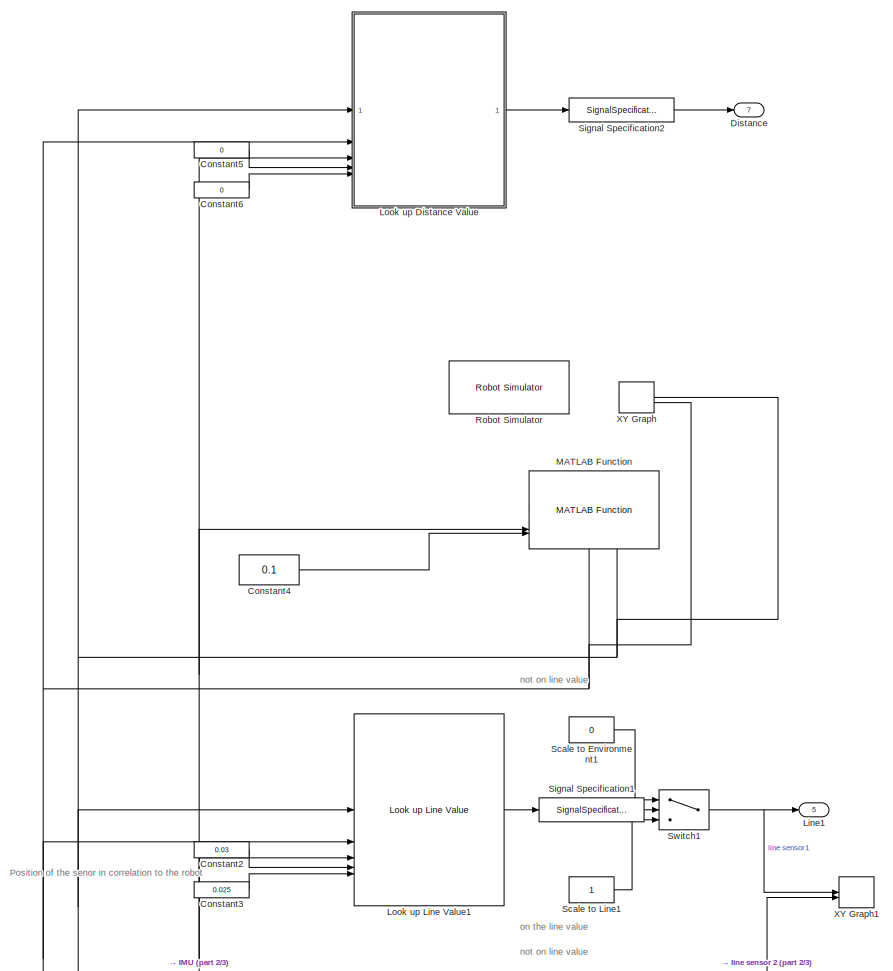
[diagram: Tumbller/Sensors - part 1/3, full width, top band]
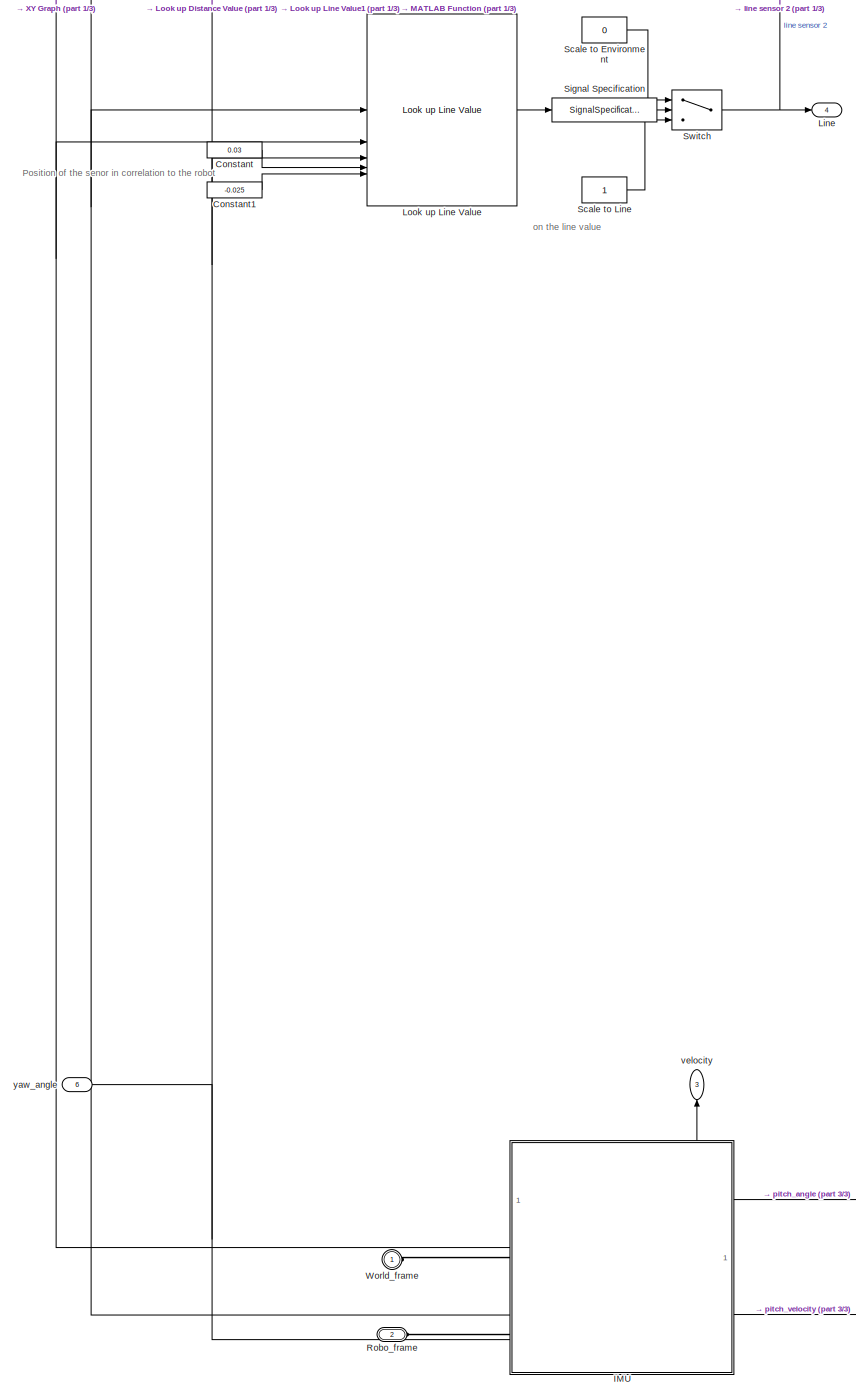
[diagram: Tumbller/Sensors - part 2/3, full width, bottom band]
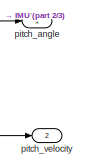
[diagram: Tumbller/Sensors - part 3/3, bottom right region]
BLOCK [SubSystem] Tumbller/Sensors
BLOCK [Constant] Tumbller/Sensors/Constant
  Value = 0.03
BLOCK [Constant] Tumbller/Sensors/Constant1
  Value = -0.025
BLOCK [Constant] Tumbller/Sensors/Constant2
  Value = 0.03
BLOCK [Constant] Tumbller/Sensors/Constant3
  Value = 0.025
BLOCK [Constant] Tumbller/Sensors/Constant4
  Value = 0.1
BLOCK [Constant] Tumbller/Sensors/Constant5
  Value = 0
BLOCK [Constant] Tumbller/Sensors/Constant6
  Value = 0
BLOCK [Outport] Tumbller/Sensors/Distance
  Port = 7
BLOCK [SubSystem] Tumbller/Sensors/IMU
  PortSchema = {"entries":[{"content":{"sides":[{"content":{"connectorIds":["Out6","LConn1","LConn2"]},"type":"ConnectorPlacement.EquallySpacedRectSide","uuid":"c8f09d09-7f07-4911-bab6-a521b0a7559c"},{"content":{"connectorIds":["Out1","Out2"],"side":"RIGHT"},"type":"ConnectorPlacement.EquallySpacedRectSide","uuid":"d51bb78f-7000-4f75-ad97-c2f39c11afb3"},{"content":{"connectorIds":["Out3","Out4","Out5"],"side":"T...<+286ch>
BLOCK [Math] Tumbller/Sensors/IMU/Hypot
  Operator = hypot
BLOCK [SubSystem] Tumbller/Sensors/IMU/MATLAB Function1
  ErrorFcn = Stateflow.Translate.translate
  PermitHierarchicalResolution = ExplicitOnly
  SFBlockType = MATLAB Function
  TreatAsAtomicUnit = on
BLOCK [Demux] Tumbller/Sensors/IMU/MATLAB Function1/ Demux 
  Outputs = 1
BLOCK [S-Function] Tumbller/Sensors/IMU/MATLAB Function1/ SFunction 
  EnableBusSupport = off
  FunctionName = sf_sfun
  PortCounts = [2 2]
  SFcnIsStateOwnerBlock = off
  SFunctionDeploymentMode = off
  Tag = Stateflow S-Function 1
BLOCK [Terminator] Tumbller/Sensors/IMU/MATLAB Function1/ Terminator 
BLOCK [Inport] Tumbller/Sensors/IMU/MATLAB Function1/omega_xyz
  Port = 2
BLOCK [Outport] Tumbller/Sensors/IMU/MATLAB Function1/pitch_rate
BLOCK [Inport] Tumbller/Sensors/IMU/MATLAB Function1/q
BLOCK [Reference] Tumbller/Sensors/IMU/PS-Simulink Converter  REF=nesl_utility/PS-Simulink
Converter
  SourceBlock = nesl_utility/PS-Simulink\nConverter
  SourceType = PS-Simulink\nConverter
BLOCK [Reference] Tumbller/Sensors/IMU/PS-Simulink Converter1  REF=nesl_utility/PS-Simulink
Converter
  NameLocation = left
  SourceBlock = nesl_utility/PS-Simulink\nConverter
  SourceType = PS-Simulink\nConverter
BLOCK [Reference] Tumbller/Sensors/IMU/PS-Simulink Converter2  REF=nesl_utility/PS-Simulink
Converter
  SourceBlock = nesl_utility/PS-Simulink\nConverter
  SourceType = PS-Simulink\nConverter
BLOCK [Reference] Tumbller/Sensors/IMU/PS-Simulink Converter3  REF=nesl_utility/PS-Simulink
Converter
  SourceBlock = nesl_utility/PS-Simulink\nConverter
  SourceType = PS-Simulink\nConverter
BLOCK [Reference] Tumbller/Sensors/IMU/PS-Simulink Converter5  REF=nesl_utility/PS-Simulink
Converter
  SourceBlock = nesl_utility/PS-Simulink\nConverter
  SourceType = PS-Simulink\nConverter
BLOCK [Reference] Tumbller/Sensors/IMU/PS-Simulink Converter6  REF=nesl_utility/PS-Simulink
Converter
  SourceBlock = nesl_utility/PS-Simulink\nConverter
  SourceType = PS-Simulink\nConverter
BLOCK [SubSystem] Tumbller/Sensors/IMU/Pitch
  ErrorFcn = Stateflow.Translate.translate
  PermitHierarchicalResolution = ExplicitOnly
  SFBlockType = MATLAB Function
  TreatAsAtomicUnit = on
BLOCK [Demux] Tumbller/Sensors/IMU/Pitch/ Demux 
  Outputs = 1
BLOCK [S-Function] Tumbller/Sensors/IMU/Pitch/ SFunction 
  EnableBusSupport = off
  FunctionName = sf_sfun
  PortCounts = [1 2]
  SFcnIsStateOwnerBlock = off
  SFunctionDeploymentMode = off
  Tag = Stateflow S-Function 2
BLOCK [Terminator] Tumbller/Sensors/IMU/Pitch/ Terminator 
BLOCK [Outport] Tumbller/Sensors/IMU/Pitch/pitch
BLOCK [Inport] Tumbller/Sensors/IMU/Pitch/q
BLOCK [Reference] Tumbller/Sensors/IMU/Radians to Degrees  REF=simulink_extras/Transformations/Radians
to Degrees
  SourceBlock = simulink_extras/Transformations/Radians\nto Degrees
  SourceType = RadiansToDegrees
BLOCK [Reference] Tumbller/Sensors/IMU/Radians to Degrees1  REF=simulink_extras/Transformations/Radians
to Degrees
  SourceBlock = simulink_extras/Transformations/Radians\nto Degrees
  SourceType = RadiansToDegrees
BLOCK [PMIOPort] Tumbller/Sensors/IMU/Robo
  NameLocation = left
  Port = 2
  Side = Left
BLOCK [Reference] Tumbller/Sensors/IMU/Transform Sensor  REF=sm_lib/Frames and
Transforms/Transform
Sensor
  NameLocation = left
  SourceBlock = sm_lib/Frames and\nTransforms/Transform\nSensor
  SourceType = Transform\nSensor
BLOCK [Reference] Tumbller/Sensors/IMU/Transform Sensor1  REF=sm_lib/Frames and
Transforms/Transform
Sensor
  SourceBlock = sm_lib/Frames and\nTransforms/Transform\nSensor
  SourceType = Transform\nSensor
BLOCK [PMIOPort] Tumbller/Sensors/IMU/World_frame
  NameLocation = left
  Side = Left
BLOCK [Record] Tumbller/Sensors/IMU/XY Graph
  CompatibilityTag = XY
  FrameSettings = [0, 0]
  Layout = [1 1]
  NumPorts = 2.0
  SignalsInternal = {"entries":[{"content":{"signals":[{"content":{"blockPath":[],"dimensions":[1],"domain":"","lineColor":"#ff13a6","lineWidth":2,"plots":[ 1 ],"port":1,"sid":[""],"signalID":1,"signalName":"y"},"type":"RecordBlkView.Signal","uuid":""},{"content":{"blockPath":[],"dimensions":[1],"domain":"","lineColor":"#fe330a","lineWidth":2,"plots":[ 1 ],"port":2,"sid":[""],"signalID":2,"signalName":"x"},"type":"Re...<+176ch>
BLOCK [Record] Tumbller/Sensors/IMU/XY Graph1
  CompatibilityTag = XY
  FrameSettings = [0, 0]
  Layout = [1 1]
  NumPorts = 2.0
  SignalsInternal = {"entries":[{"content":{"signals":[{"content":{"blockPath":[],"dimensions":[1],"domain":"","lineColor":"#ff6929","lineWidth":2,"port":1,"sid":[""],"signalID":1,"signalName":"velocity"},"type":"RecordBlkView.Signal","uuid":""},{"content":{"blockPath":[],"dimensions":[1],"domain":"","lineColor":"#b746ff","lineWidth":2,"port":2,"sid":[""],"signalID":2,"signalName":"vy"},"type":"RecordBlkView.Signal",...<+156ch>
BLOCK [SubSystem] Tumbller/Sensors/IMU/Yaw
  ErrorFcn = Stateflow.Translate.translate
  PermitHierarchicalResolution = ExplicitOnly
  SFBlockType = MATLAB Function
  TreatAsAtomicUnit = on
BLOCK [Demux] Tumbller/Sensors/IMU/Yaw/ Demux 
  Outputs = 1
BLOCK [S-Function] Tumbller/Sensors/IMU/Yaw/ SFunction 
  EnableBusSupport = off
  FunctionName = sf_sfun
  PortCounts = [1 2]
  SFcnIsStateOwnerBlock = off
  SFunctionDeploymentMode = off
  Tag = Stateflow S-Function 4
BLOCK [Terminator] Tumbller/Sensors/IMU/Yaw/ Terminator 
BLOCK [Inport] Tumbller/Sensors/IMU/Yaw/q
BLOCK [Outport] Tumbller/Sensors/IMU/Yaw/yaw
BLOCK [Record] Tumbller/Sensors/IMU/pitch_ang_g
  CompatibilityTag = XY
  FrameSettings = [0, 0, 0, 0]
  Layout = [1 1]
  NumPorts = 4.0
  SignalsInternal = {"entries":[{"content":{"signals":[{"content":{"blockPath":[],"dimensions":[1],"domain":"","lineColor":"#ff6929","lineWidth":2,"port":1,"sid":[""],"signalID":1,"signalName":"pitch_angle"},"type":"RecordBlkView.Signal","uuid":""},{"content":{"blockPath":[],"dimensions":[1],"domain":"","lineColor":"#b746ff","lineWidth":2,"port":2,"sid":[""],"signalID":2,"signalName":"pitch_angle_deg"},"type":"Record...<+571ch>
BLOCK [Outport] Tumbller/Sensors/IMU/pitch_angle
BLOCK [Outport] Tumbller/Sensors/IMU/pitch_velocity
  Port = 2
BLOCK [Outport] Tumbller/Sensors/IMU/velocity
  Port = 5
BLOCK [Outport] Tumbller/Sensors/IMU/x_value
  Port = 3
BLOCK [Outport] Tumbller/Sensors/IMU/y_value
  Port = 4
BLOCK [Outport] Tumbller/Sensors/IMU/yaw_angle
  Port = 6
BLOCK [Outport] Tumbller/Sensors/Line
  Port = 4
BLOCK [Outport] Tumbller/Sensors/Line1
  Port = 5
BLOCK [SubSystem] Tumbller/Sensors/Look up Distance Value
  AncestorBlock = mobileRoboticsTrainingLib/Ultrasonic Sensor/Look up Distance Value
BLOCK [SubSystem] Tumbller/Sensors/Look up Distance Value/Calculate Rotation Matrix
  ErrorFcn = Stateflow.Translate.translate
  PermitHierarchicalResolution = ExplicitOnly
  SFBlockType = MATLAB Function
  TreatAsAtomicUnit = on
BLOCK [Demux] Tumbller/Sensors/Look up Distance Value/Calculate Rotation Matrix/ Demux 
  Outputs = 1
BLOCK [S-Function] Tumbller/Sensors/Look up Distance Value/Calculate Rotation Matrix/ SFunction 
  EnableBusSupport = off
  FunctionName = sf_sfun
  PortCounts = [1 2]
  SFcnIsStateOwnerBlock = off
  SFunctionDeploymentMode = off
  Tag = Stateflow S-Function 8
BLOCK [Terminator] Tumbller/Sensors/Look up Distance Value/Calculate Rotation Matrix/ Terminator 
BLOCK [Inport] Tumbller/Sensors/Look up Distance Value/Calculate Rotation Matrix/q
BLOCK [Outport] Tumbller/Sensors/Look up Distance Value/Calculate Rotation Matrix/rotMat
BLOCK [Constant] Tumbller/Sensors/Look up Distance Value/Constant
  Value = 70
BLOCK [Outport] Tumbller/Sensors/Look up Distance Value/Distance
BLOCK [SubSystem] Tumbller/Sensors/Look up Distance Value/Subsystem
BLOCK [Constant] Tumbller/Sensors/Look up Distance Value/Subsystem/Constant
  Value = [0.08 : 0.01 : 0.70]
BLOCK [Outport] Tumbller/Sensors/Look up Distance Value/Subsystem/DistanceArray
  ConcatenationDimension = 1
BLOCK [ForEach] Tumbller/Sensors/Look up Distance Value/Subsystem/For Each
  DisableCoverage = on
BLOCK [SubSystem] Tumbller/Sensors/Look up Distance Value/Subsystem/Look up Sensor Value
  TreatAsAtomicUnit = on
BLOCK [Constant] Tumbller/Sensors/Look up Distance Value/Subsystem/Look up Sensor Value/Constant
  Value = 0
BLOCK [ForEach] Tumbller/Sensors/Look up Distance Value/Subsystem/Look up Sensor Value/For Each
  DisableCoverage = on
BLOCK [SubSystem] Tumbller/Sensors/Look up Distance Value/Subsystem/Look up Sensor Value/Lookup Obstacle Map
BLOCK [Bias] Tumbller/Sensors/Look up Distance Value/Subsystem/Look up Sensor Value/Lookup Obstacle Map/Bias
  Bias = -1
  SaturateOnIntegerOverflow = off
BLOCK [Bias] Tumbller/Sensors/Look up Distance Value/Subsystem/Look up Sensor Value/Lookup Obstacle Map/Bias1
  Bias = -1
  SaturateOnIntegerOverflow = off
BLOCK [Constant] Tumbller/Sensors/Look up Distance Value/Subsystem/Look up Sensor Value/Lookup Obstacle Map/Constant1
  Value = size(mapForSim.obsMap,1)
BLOCK [LookupNDDirect] Tumbller/Sensors/Look up Distance Value/Subsystem/Look up Sensor Value/Lookup Obstacle Map/Direct Lookup Table (n-D)
  DiagnosticForOutOfRangeInput = Error
  Table = mapForSim.obsMap
BLOCK [Gain] Tumbller/Sensors/Look up Distance Value/Subsystem/Look up Sensor Value/Lookup Obstacle Map/Gain
  Gain = mapForSim.scaleFactor
BLOCK [Gain] Tumbller/Sensors/Look up Distance Value/Subsystem/Look up Sensor Value/Lookup Obstacle Map/Gain1
  Gain = mapForSim.scaleFactor
BLOCK [Rounding] Tumbller/Sensors/Look up Distance Value/Subsystem/Look up Sensor Value/Lookup Obstacle Map/Rounding Function
  Operator = round
BLOCK [Rounding] Tumbller/Sensors/Look up Distance Value/Subsystem/Look up Sensor Value/Lookup Obstacle Map/Rounding Function1
  Operator = round
BLOCK [Saturate] Tumbller/Sensors/Look up Distance Value/Subsystem/Look up Sensor Value/Lookup Obstacle Map/Saturation
  LowerLimit = 0
  UpperLimit = size(mapForSim.obsMap,1)-1
BLOCK [Saturate] Tumbller/Sensors/Look up Distance Value/Subsystem/Look up Sensor Value/Lookup Obstacle Map/Saturation1
  LowerLimit = 0
  UpperLimit = size(mapForSim.obsMap,2)-1
BLOCK [Outport] Tumbller/Sensors/Look up Distance Value/Subsystem/Look up Sensor Value/Lookup Obstacle Map/SensorVal
BLOCK [Sum] Tumbller/Sensors/Look up Distance Value/Subsystem/Look up Sensor Value/Lookup Obstacle Map/Sum
  Inputs = |-+
BLOCK [Inport] Tumbller/Sensors/Look up Distance Value/Subsystem/Look up Sensor Value/Lookup Obstacle Map/x
BLOCK [Inport] Tumbller/Sensors/Look up Distance Value/Subsystem/Look up Sensor Value/Lookup Obstacle Map/y
  Port = 2
BLOCK [Math] Tumbller/Sensors/Look up Distance Value/Subsystem/Look up Sensor Value/Math Function
  Operator = transpose
  SignedPower = on
BLOCK [Product] Tumbller/Sensors/Look up Distance Value/Subsystem/Look up Sensor Value/Matrix Multiply
  Multiplication = Matrix(*)
BLOCK [Inport] Tumbller/Sensors/Look up Distance Value/Subsystem/Look up Sensor Value/R
  Port = 3
BLOCK [Selector] Tumbller/Sensors/Look up Distance Value/Subsystem/Look up Sensor Value/Selector
  IndexOptions = Index vector (dialog)
  Indices = 1
  InputPortWidth = 3
  OutputSizes = 1
BLOCK [Selector] Tumbller/Sensors/Look up Distance Value/Subsystem/Look up Sensor Value/Selector1
  IndexOptions = Index vector (dialog)
  Indices = [2]
  InputPortWidth = 3
  OutputSizes = 1
BLOCK [Inport] Tumbller/Sensors/Look up Distance Value/Subsystem/Look up Sensor Value/SensorLineX
  Partition = on
  PartitionDimension = 1
  PartitionOffset = 0
  PartitionWidth = 1
BLOCK [Inport] Tumbller/Sensors/Look up Distance Value/Subsystem/Look up Sensor Value/SensorLineY
  Port = 2
BLOCK [Outport] Tumbller/Sensors/Look up Distance Value/Subsystem/Look up Sensor Value/SensorVal
  ConcatenationDimension = 1
BLOCK [Sum] Tumbller/Sensors/Look up Distance Value/Subsystem/Look up Sensor Value/Sum2
  Inputs = |++
BLOCK [Sum] Tumbller/Sensors/Look up Distance Value/Subsystem/Look up Sensor Value/Sum3
  Inputs = |++
BLOCK [Concatenate] Tumbller/Sensors/Look up Distance Value/Subsystem/Look up Sensor Value/Vector Concatenate
  Mode = Multidimensional array
  NumInputs = 3
BLOCK [Inport] Tumbller/Sensors/Look up Distance Value/Subsystem/Look up Sensor Value/x
  Port = 4
BLOCK [Inport] Tumbller/Sensors/Look up Distance Value/Subsystem/Look up Sensor Value/y
  Port = 5
BLOCK [SubSystem] Tumbller/Sensors/Look up Distance Value/Subsystem/Nearest Object
  ErrorFcn = Stateflow.Translate.translate
  PermitHierarchicalResolution = ExplicitOnly
  SFBlockType = MATLAB Function
  TreatAsAtomicUnit = on
BLOCK [Demux] Tumbller/Sensors/Look up Distance Value/Subsystem/Nearest Object/ Demux 
  Outputs = 1
BLOCK [S-Function] Tumbller/Sensors/Look up Distance Value/Subsystem/Nearest Object/ SFunction 
  EnableBusSupport = off
  FunctionName = sf_sfun
  PortCounts = [2 2]
  SFcnIsStateOwnerBlock = off
  SFunctionDeploymentMode = off
  Tag = Stateflow S-Function 9
BLOCK [Terminator] Tumbller/Sensors/Look up Distance Value/Subsystem/Nearest Object/ Terminator 
BLOCK [Outport] Tumbller/Sensors/Look up Distance Value/Subsystem/Nearest Object/distanceToNearest
BLOCK [Inport] Tumbller/Sensors/Look up Distance Value/Subsystem/Nearest Object/sensorLine
BLOCK [Inport] Tumbller/Sensors/Look up Distance Value/Subsystem/Nearest Object/sensorVal
  Port = 2
BLOCK [Inport] Tumbller/Sensors/Look up Distance Value/Subsystem/R
  Port = 3
BLOCK [Sum] Tumbller/Sensors/Look up Distance Value/Subsystem/Sum1
  Inputs = |++
BLOCK [Inport] Tumbller/Sensors/Look up Distance Value/Subsystem/offSetX
  Partition = on
  PartitionDimension = 1
  PartitionOffset = 0
  PartitionWidth = 1
BLOCK [Inport] Tumbller/Sensors/Look up Distance Value/Subsystem/offSetY
  Partition = on
  PartitionDimension = 1
  PartitionOffset = 0
  PartitionWidth = 1
  Port = 2
BLOCK [Inport] Tumbller/Sensors/Look up Distance Value/Subsystem/x
  Port = 4
BLOCK [Inport] Tumbller/Sensors/Look up Distance Value/Subsystem/y
  Port = 5
BLOCK [Inport] Tumbller/Sensors/Look up Distance Value/offSetX
  Port = 4
BLOCK [Inport] Tumbller/Sensors/Look up Distance Value/offSetY
  Port = 5
BLOCK [Inport] Tumbller/Sensors/Look up Distance Value/q
  Port = 3
BLOCK [Inport] Tumbller/Sensors/Look up Distance Value/x
BLOCK [Inport] Tumbller/Sensors/Look up Distance Value/y
  Port = 2
BLOCK [Reference] Tumbller/Sensors/Look up Line Value  REF=mobileRoboticsTrainingLib/Line Sensor/Look up Line Value
  SourceBlock = mobileRoboticsTrainingLib/Line Sensor/Look up Line Value
  SourceProductName = Mobile Robotics Training Library
  SourceType = SubSystem
BLOCK [Reference] Tumbller/Sensors/Look up Line Value1  REF=mobileRoboticsTrainingLib/Line Sensor/Look up Line Value
  SourceBlock = mobileRoboticsTrainingLib/Line Sensor/Look up Line Value
  SourceProductName = Mobile Robotics Training Library
  SourceType = SubSystem
BLOCK [Reference] Tumbller/Sensors/MATLAB Function  REF=mobileRoboticsTrainingLib/Robot Simulator/MATLAB Function
  SourceBlock = mobileRoboticsTrainingLib/Robot Simulator/MATLAB Function
  SourceProductName = Mobile Robotics Training Library
  SourceType = SubSystem
BLOCK [PMIOPort] Tumbller/Sensors/Robo_frame
  Port = 2
  Side = Left
BLOCK [Reference] Tumbller/Sensors/Robot Simulator  REF=mobileRoboticsTrainingLib/Robot Simulator
  Commented = on
  Priority = 99
  SourceBlock = mobileRoboticsTrainingLib/Robot Simulator
  SourceProductName = Mobile Robotics Training Library
  SourceType = Robot Simulator
BLOCK [Constant] Tumbller/Sensors/Scale to Environment
  Value = 0
BLOCK [Constant] Tumbller/Sensors/Scale to Environment1
  Value = 0
BLOCK [Constant] Tumbller/Sensors/Scale to Line
BLOCK [Constant] Tumbller/Sensors/Scale to Line1
BLOCK [SignalSpecification] Tumbller/Sensors/Signal Specification
  Dimensions = 1
BLOCK [SignalSpecification] Tumbller/Sensors/Signal Specification1
  Dimensions = 1
BLOCK [SignalSpecification] Tumbller/Sensors/Signal Specification2
  Dimensions = 1
BLOCK [Switch] Tumbller/Sensors/Switch
  Criteria = u2 > Threshold
  InputSameDT = off
  SaturateOnIntegerOverflow = off
BLOCK [Switch] Tumbller/Sensors/Switch1
  Criteria = u2 > Threshold
  InputSameDT = off
  SaturateOnIntegerOverflow = off
BLOCK [PMIOPort] Tumbller/Sensors/World_frame
  Side = Left
BLOCK [Record] Tumbller/Sensors/XY Graph
  CompatibilityTag = XY
  FrameSettings = [0, 0]
  Layout = [1 1]
  NumPorts = 2.0
  SignalsInternal = {"entries":[{"content":{"signals":[{"content":{"blockPath":[],"dimensions":[1],"domain":"","lineColor":"#a2142f","plots":[ 1 ],"port":1,"sid":[""],"signalID":1,"signalName":"IMU:3"},"type":"RecordBlkView.Signal","uuid":""},{"content":{"blockPath":[],"dimensions":[1],"domain":"","lineColor":"#139fff","plots":[ 1 ],"port":2,"sid":[""],"signalID":2,"signalName":"IMU:4"},"type":"RecordBlkView.Signal",...<+156ch>
BLOCK [Record] Tumbller/Sensors/XY Graph1
  CompatibilityTag = XY
  FrameSettings = [0, 0]
  Layout = [1 1]
  NumPorts = 2.0
  SignalsInternal = {"entries":[{"content":{"signals":[{"content":{"blockPath":[],"dimensions":[1],"domain":"","lineColor":"#a2142f","plots":[ 1 ],"port":1,"sid":[""],"signalID":1,"signalName":"line sensor1"},"type":"RecordBlkView.Signal","uuid":""},{"content":{"blockPath":[],"dimensions":[1],"domain":"","lineColor":"#139fff","plots":[ 1 ],"port":2,"sid":[""],"signalID":2,"signalName":"line sensor 2"},"type":"RecordB...<+171ch>
  VisualizationBindings = {"xyplotplugin":{"info":[{"series":[{"bindingParametersList":[{"parameter":"X-Axis","signalID":1,"signalName":"line sensor1"},{"parameter":"Y-Axis","signalID":2,"signalName":"line sensor 2"}],"seriesID":0}],"subplotID":1}]}}
BLOCK [Outport] Tumbller/Sensors/pitch_angle
BLOCK [Outport] Tumbller/Sensors/pitch_velocity
  Port = 2
BLOCK [Outport] Tumbller/Sensors/velocity
  NameLocation = right
  Port = 3
BLOCK [Outport] Tumbller/Sensors/yaw_angle
  Port = 6
BLOCK [SubSystem] Tumbller/Subsystem_Foothold
BLOCK [PMIOPort] Tumbller/Subsystem_Foothold/Conn3
  Port = 3
  Side = Left
BLOCK [SubSystem] Tumbller/Subsystem_Foothold/Copper_Column_Foothold
  NameLocation = top
BLOCK [PMIOPort] Tumbller/Subsystem_Foothold/Copper_Column_Foothold/F
  Side = Left
BLOCK [PMIOPort] Tumbller/Subsystem_Foothold/Copper_Column_Foothold/F1
  Port = 2
  Side = Left
BLOCK [PMIOPort] Tumbller/Subsystem_Foothold/Copper_Column_Foothold/F2
  Port = 3
  Side = Right
BLOCK [SubSystem] Tumbller/Subsystem_Foothold/Copper_Column_Foothold/M3_11_copper_column_1_RIGID
BLOCK [PMIOPort] Tumbller/Subsystem_Foothold/Copper_Column_Foothold/M3_11_copper_column_1_RIGID/F
  Side = Left
BLOCK [PMIOPort] Tumbller/Subsystem_Foothold/Copper_Column_Foothold/M3_11_copper_column_1_RIGID/F1
  Port = 2
  Side = Right
BLOCK [Reference] Tumbller/Subsystem_Foothold/Copper_Column_Foothold/M3_11_copper_column_1_RIGID/ReferenceFrame  REF=sm_lib/Frames and
Transforms/Reference
Frame
  SourceBlock = sm_lib/Frames and\nTransforms/Reference\nFrame
  SourceType = Reference\nFrame
BLOCK [Reference] Tumbller/Subsystem_Foothold/Copper_Column_Foothold/M3_11_copper_column_1_RIGID/Solid  REF=sm_lib/Body Elements/File Solid
  SourceBlock = sm_lib/Body Elements/File Solid
  SourceType = File Solid
BLOCK [Reference] Tumbller/Subsystem_Foothold/Copper_Column_Foothold/M3_11_copper_column_1_RIGID/Transform  REF=sm_lib/Frames and
Transforms/Rigid
Transform
  SourceBlock = sm_lib/Frames and\nTransforms/Rigid\nTransform
  SourceType = Rigid\nTransform
BLOCK [Reference] Tumbller/Subsystem_Foothold/Copper_Column_Foothold/M3_11_copper_column_1_RIGID/Transform1  REF=sm_lib/Frames and
Transforms/Rigid
Transform
  SourceBlock = sm_lib/Frames and\nTransforms/Rigid\nTransform
  SourceType = Rigid\nTransform
BLOCK [SubSystem] Tumbller/Subsystem_Foothold/Copper_Column_Foothold/M3_11_copper_column_2_RIGID
BLOCK [PMIOPort] Tumbller/Subsystem_Foothold/Copper_Column_Foothold/M3_11_copper_column_2_RIGID/F
  Side = Left
BLOCK [Reference] Tumbller/Subsystem_Foothold/Copper_Column_Foothold/M3_11_copper_column_2_RIGID/ReferenceFrame  REF=sm_lib/Frames and
Transforms/Reference
Frame
  SourceBlock = sm_lib/Frames and\nTransforms/Reference\nFrame
  SourceType = Reference\nFrame
BLOCK [Reference] Tumbller/Subsystem_Foothold/Copper_Column_Foothold/M3_11_copper_column_2_RIGID/Solid  REF=sm_lib/Body Elements/File Solid
  SourceBlock = sm_lib/Body Elements/File Solid
  SourceType = File Solid
BLOCK [Reference] Tumbller/Subsystem_Foothold/Copper_Column_Foothold/M3_11_copper_column_2_RIGID/Transform  REF=sm_lib/Frames and
Transforms/Rigid
Transform
  SourceBlock = sm_lib/Frames and\nTransforms/Rigid\nTransform
  SourceType = Rigid\nTransform
BLOCK [PMIOPort] Tumbller/Subsystem_Foothold/F
  Side = Right
BLOCK [PMIOPort] Tumbller/Subsystem_Foothold/F1
  Port = 2
  Side = Right
BLOCK [SubSystem] Tumbller/Subsystem_Foothold/Foothold
  NameLocation = top
BLOCK [PMIOPort] Tumbller/Subsystem_Foothold/Foothold/Connection Port
  Port = 2
  Side = Right
  Tag = simrfV2util1/Connection Port
BLOCK [PMIOPort] Tumbller/Subsystem_Foothold/Foothold/F
  Side = Left
BLOCK [Reference] Tumbller/Subsystem_Foothold/Foothold/ReferenceFrame  REF=sm_lib/Frames and
Transforms/Reference
Frame
  SourceBlock = sm_lib/Frames and\nTransforms/Reference\nFrame
  SourceType = Reference\nFrame
BLOCK [Reference] Tumbller/Subsystem_Foothold/Foothold/Solid  REF=sm_lib/Body Elements/File Solid
  SourceBlock = sm_lib/Body Elements/File Solid
  SourceType = File Solid
BLOCK [Reference] Tumbller/Subsystem_Foothold/Foothold/Spatial Contact Force  REF=sm_lib/Forces and
Torques/Spatial
Contact Force
  SourceBlock = sm_lib/Forces and\nTorques/Spatial\nContact Force
  SourceType = Spatial\nContact Force
BLOCK [Reference] Tumbller/Subsystem_Foothold/Foothold/Transform  REF=sm_lib/Frames and
Transforms/Rigid
Transform
  SourceBlock = sm_lib/Frames and\nTransforms/Rigid\nTransform
  SourceType = Rigid\nTransform
BLOCK [SubSystem] Tumbller/Top_Plate
BLOCK [PMIOPort] Tumbller/Top_Plate/F
  Side = Left
BLOCK [Reference] Tumbller/Top_Plate/ReferenceFrame  REF=sm_lib/Frames and
Transforms/Reference
Frame
  SourceBlock = sm_lib/Frames and\nTransforms/Reference\nFrame
  SourceType = Reference\nFrame
BLOCK [Reference] Tumbller/Top_Plate/Solid  REF=sm_lib/Body Elements/File Solid
  SourceBlock = sm_lib/Body Elements/File Solid
  SourceType = File Solid
BLOCK [Reference] Tumbller/Top_Plate/Transform  REF=sm_lib/Frames and
Transforms/Rigid
Transform
  SourceBlock = sm_lib/Frames and\nTransforms/Rigid\nTransform
  SourceType = Rigid\nTransform
BLOCK [Reference] Tumbller/Transform1  REF=sm_lib/Frames and
Transforms/Rigid
Transform
  SourceBlock = sm_lib/Frames and\nTransforms/Rigid\nTransform
  SourceType = Rigid\nTransform
BLOCK [PMIOPort] Tumbller/Tumbller_frame
  Port = 3
  Side = Left
BLOCK [PMIOPort] Tumbller/World_frame
  Port = 2
  Side = Left
BLOCK [Outport] Tumbller/distance_to_obstacle
  Port = 7
BLOCK [Inport] Tumbller/left_motor_torque
BLOCK [Outport] Tumbller/pitch_angle
BLOCK [Outport] Tumbller/pitch_velocity
  Port = 2
BLOCK [Inport] Tumbller/right_motor_torque
  Port = 2
BLOCK [Outport] Tumbller/velocity
  Port = 3
BLOCK [Outport] Tumbller/yaw_angle
  Port = 6
ANNOTATION Tumbller: in drive direction
ANNOTATION Tumbller/Right_Wheel_Assembly: The system consists of an actuated wheel rotation joint responsible for longitudinal motion and a passive body pitch joint representing the inverted pendulum dynamics of the chassis.
ANNOTATION Tumbller/Sensors: Position of the senor in correlation to the robot
ANNOTATION Tumbller/Sensors: not on line value
ANNOTATION Tumbller/Sensors: on the line value
ANNOTATION Tumbller/Sensors/IMU: Angle and angular velocity
ANNOTATION Tumbller/Sensors/IMU: Postion and velocity
LINE Control/Desired_angle:1 -> Control/Switch:1
LINE Control/Desired_velocity:1 -> Control/Sum1:1
NET Control/Line_sensor_1:1 -> Control/MATLAB Function:1, Control/XY Graph:4
NET Control/Line_sensor_2:1 -> Control/MATLAB Function:2, Control/XY Graph:5
NET Control/MATLAB Function1:1 -> Control/MATLAB Function2:1, Control/Scope1:1, Control/Switch:2
LINE Control/MATLAB Function2:1 -> Control/left_motor_torque:1
LINE Control/MATLAB Function2:2 -> Control/right_motor_torque:1
LINE Control/MATLAB Function:1 -> Control/PID Controller1:1
LINE Control/Multiply:1 -> Control/Sum1:2
LINE Control/Obstacle_Avoidance:1 -> Control/MATLAB Function2:4
LINE Control/Obstacle_Avoidance:2 -> Control/MATLAB Function2:5
NET Control/PID Controller1:1 -> Control/Display1:1, Control/MATLAB Function2:3, Control/XY Graph1:1
LINE Control/PID Controller2:1 -> Control/Switch:3
NET Control/PID Controller:1 -> Control/MATLAB Function2:2, Control/Scope1:2, Control/Scope:1
NET Control/Sum1:1 -> Control/Display3:1, Control/PID Controller2:1
LINE Control/Sum:1 -> Control/PID Controller:1
NET Control/Switch:1 -> Control/Display:1, Control/Sum:1
NET Control/distance_to_obstacle:1 -> Control/Obstacle_Avoidance:1, Control/Obstacle_Avoidance:3, Control/XY Graph:7
NET Control/pitch_angle:1 -> Control/MATLAB Function1:1, Control/Sum:2, Control/XY Graph:1
NET Control/pitch_velocity:1 -> Control/MATLAB Function1:2, Control/XY Graph:2
NET Control/velocity:1 -> Control/Display2:1, Control/Multiply:1, Control/XY Graph:3
NET Control/yaw_angle:1 -> Control/Obstacle_Avoidance:2, Control/XY Graph:6
LINE Control:1 -> Tumbller:1
LINE Control:2 -> Tumbller:2
LINE Tumbller/Left_Wheel_Assembly/Constant:1 -> Tumbller/Left_Wheel_Assembly/Gain:1
LINE Tumbller/Left_Wheel_Assembly/Gain2:1 -> Tumbller/Left_Wheel_Assembly/Simulink-PS Converter:1
LINE Tumbller/Left_Wheel_Assembly/Gain:1 -> Tumbller/Left_Wheel_Assembly/Simulink-PS Converter2:1
NET Tumbller/Left_Wheel_Assembly/balancing:1 -> Tumbller/Left_Wheel_Assembly/Gain2:1, Tumbller/Left_Wheel_Assembly/Simulink-PS Converter1:1
LINE Tumbller/Right_Wheel_Assembly/Constant:1 -> Tumbller/Right_Wheel_Assembly/Gain:1
LINE Tumbller/Right_Wheel_Assembly/Gain2:1 -> Tumbller/Right_Wheel_Assembly/Simulink-PS Converter:1
LINE Tumbller/Right_Wheel_Assembly/Gain:1 -> Tumbller/Right_Wheel_Assembly/Simulink-PS Converter2:1
LINE Tumbller/Right_Wheel_Assembly/PS-Simulink Converter:1 -> Tumbller/Right_Wheel_Assembly/XY Graph:1
NET Tumbller/Right_Wheel_Assembly/balancing:1 -> Tumbller/Right_Wheel_Assembly/Gain2:1, Tumbller/Right_Wheel_Assembly/Simulink-PS Converter1:1
LINE Tumbller/Sensors/Constant1:1 -> Tumbller/Sensors/Look up Line Value:5
LINE Tumbller/Sensors/Constant2:1 -> Tumbller/Sensors/Look up Line Value1:4
LINE Tumbller/Sensors/Constant3:1 -> Tumbller/Sensors/Look up Line Value1:5
LINE Tumbller/Sensors/Constant4:1 -> Tumbller/Sensors/MATLAB Function:4
LINE Tumbller/Sensors/Constant5:1 -> Tumbller/Sensors/Look up Distance Value:4
LINE Tumbller/Sensors/Constant6:1 -> Tumbller/Sensors/Look up Distance Value:5
LINE Tumbller/Sensors/Constant:1 -> Tumbller/Sensors/Look up Line Value:4
NET Tumbller/Sensors/IMU/Hypot:1 -> Tumbller/Sensors/IMU/XY Graph1:1, Tumbller/Sensors/IMU/velocity:1
NET Tumbller/Sensors/IMU/MATLAB Function1:1 -> Tumbller/Sensors/IMU/pitch_ang_g:3, Tumbller/Sensors/IMU/pitch_velocity:1
NET Tumbller/Sensors/IMU/PS-Simulink Converter1:1 -> Tumbller/Sensors/IMU/XY Graph:1, Tumbller/Sensors/IMU/y_value:1
LINE Tumbller/Sensors/IMU/PS-Simulink Converter2:1 -> Tumbller/Sensors/IMU/Hypot:1
NET Tumbller/Sensors/IMU/PS-Simulink Converter3:1 -> Tumbller/Sensors/IMU/Hypot:2, Tumbller/Sensors/IMU/XY Graph1:2
NET Tumbller/Sensors/IMU/PS-Simulink Converter5:1 -> Tumbller/Sensors/IMU/MATLAB Function1:1, Tumbller/Sensors/IMU/Pitch:1, Tumbller/Sensors/IMU/Yaw:1
LINE Tumbller/Sensors/IMU/PS-Simulink Converter6:1 -> Tumbller/Sensors/IMU/MATLAB Function1:2
NET Tumbller/Sensors/IMU/PS-Simulink Converter:1 -> Tumbller/Sensors/IMU/XY Graph:2, Tumbller/Sensors/IMU/x_value:1
NET Tumbller/Sensors/IMU/Pitch:1 -> Tumbller/Sensors/IMU/Radians to Degrees:1, Tumbller/Sensors/IMU/pitch_ang_g:1, Tumbller/Sensors/IMU/pitch_angle:1
LINE Tumbller/Sensors/IMU/Radians to Degrees1:1 -> Tumbller/Sensors/IMU/pitch_ang_g:4
LINE Tumbller/Sensors/IMU/Radians to Degrees:1 -> Tumbller/Sensors/IMU/pitch_ang_g:2
NET Tumbller/Sensors/IMU/Yaw:1 -> Tumbller/Sensors/IMU/Radians to Degrees1:1, Tumbller/Sensors/IMU/yaw_angle:1
LINE Tumbller/Sensors/IMU:1 -> Tumbller/Sensors/pitch_angle:1
LINE Tumbller/Sensors/IMU:2 -> Tumbller/Sensors/pitch_velocity:1
NET Tumbller/Sensors/IMU:3 -> Tumbller/Sensors/Look up Distance Value:1, Tumbller/Sensors/Look up Line Value1:1, Tumbller/Sensors/Look up Line Value:1, Tumbller/Sensors/MATLAB Function:1, Tumbller/Sensors/XY Graph:1
NET Tumbller/Sensors/IMU:4 -> Tumbller/Sensors/Look up Distance Value:2, Tumbller/Sensors/Look up Line Value1:2, Tumbller/Sensors/Look up Line Value:2, Tumbller/Sensors/MATLAB Function:2, Tumbller/Sensors/XY Graph:2
LINE Tumbller/Sensors/IMU:5 -> Tumbller/Sensors/velocity:1
NET Tumbller/Sensors/IMU:6 -> Tumbller/Sensors/Look up Distance Value:3, Tumbller/Sensors/Look up Line Value1:3, Tumbller/Sensors/Look up Line Value:3, Tumbller/Sensors/MATLAB Function:3, Tumbller/Sensors/yaw_angle:1
LINE Tumbller/Sensors/Look up Distance Value:1 -> Tumbller/Sensors/Signal Specification2:1
LINE Tumbller/Sensors/Look up Line Value1:1 -> Tumbller/Sensors/Signal Specification1:1
LINE Tumbller/Sensors/Look up Line Value:1 -> Tumbller/Sensors/Signal Specification:1
LINE Tumbller/Sensors/Scale to Environment1:1 -> Tumbller/Sensors/Switch1:1
LINE Tumbller/Sensors/Scale to Environment:1 -> Tumbller/Sensors/Switch:1
LINE Tumbller/Sensors/Scale to Line1:1 -> Tumbller/Sensors/Switch1:3
LINE Tumbller/Sensors/Scale to Line:1 -> Tumbller/Sensors/Switch:3
LINE Tumbller/Sensors/Signal Specification1:1 -> Tumbller/Sensors/Switch1:2
LINE Tumbller/Sensors/Signal Specification2:1 -> Tumbller/Sensors/Distance:1
LINE Tumbller/Sensors/Signal Specification:1 -> Tumbller/Sensors/Switch:2
NET Tumbller/Sensors/Switch1:1 -> Tumbller/Sensors/Line1:1, Tumbller/Sensors/XY Graph1:1
NET Tumbller/Sensors/Switch:1 -> Tumbller/Sensors/Line:1, Tumbller/Sensors/XY Graph1:2
LINE Tumbller/Sensors:1 -> Tumbller/pitch_angle:1
LINE Tumbller/Sensors:2 -> Tumbller/pitch_velocity:1
LINE Tumbller/Sensors:3 -> Tumbller/velocity:1
LINE Tumbller/Sensors:4 -> Tumbller/Line_sensor_1:1
LINE Tumbller/Sensors:5 -> Tumbller/Line_sensor_2:1
LINE Tumbller/Sensors:6 -> Tumbller/yaw_angle:1
LINE Tumbller/Sensors:7 -> Tumbller/distance_to_obstacle:1
LINE Tumbller/left_motor_torque:1 -> Tumbller/Left_Wheel_Assembly:1
LINE Tumbller/right_motor_torque:1 -> Tumbller/Right_Wheel_Assembly:1
LINE Tumbller:1 -> Control:1
LINE Tumbller:2 -> Control:2
LINE Tumbller:3 -> Control:3
LINE Tumbller:4 -> Control:4
LINE Tumbller:5 -> Control:5
LINE Tumbller:6 -> Control:6
LINE Tumbller:7 -> Control:7
PNET net1: Environmen/6-DOF Joint:LConn1 -- Environmen/Infinite Plane:LConn1 -- Environmen/MechanismConfiguration:RConn1 -- Environmen/Solver Configuration:RConn1 -- Environmen/World:RConn1 -- Environmen/port:RConn1
PLINE Environmen/6-DOF Joint:RConn1 -- Environmen/Conn3:RConn1
PLINE Environmen/Conn1:RConn1 -- Environmen/Infinite Plane:RConn1
PLINE Environmen:RConn1 -- Tumbller:LConn1
PLINE Environmen:RConn2 -- Tumbller:LConn2
PLINE Environmen:RConn3 -- Tumbller:LConn3
PLINE Tumbller/Battery/F:RConn1 -- Tumbller/Battery/Transform:RConn1
PNET net2: Tumbller/Battery/ReferenceFrame:RConn1 -- Tumbller/Battery/Solid:RConn1 -- Tumbller/Battery/Transform:LConn1
PLINE Tumbller/Battery:LConn1 -- Tumbller/Middle_Plate:LConn2
PLINE Tumbller/Chassis_Plate/F10:RConn1 -- Tumbller/Chassis_Plate/Transform10:RConn1
PLINE Tumbller/Chassis_Plate/F11:RConn1 -- Tumbller/Chassis_Plate/Transform11:RConn1
PLINE Tumbller/Chassis_Plate/F12:RConn1 -- Tumbller/Chassis_Plate/Transform12:RConn1
PLINE Tumbller/Chassis_Plate/F13:RConn1 -- Tumbller/Chassis_Plate/Transform13:RConn1
PLINE Tumbller/Chassis_Plate/F1:RConn1 -- Tumbller/Chassis_Plate/Transform1:RConn1
PLINE Tumbller/Chassis_Plate/F3:RConn1 -- Tumbller/Chassis_Plate/Transform3:RConn1
PLINE Tumbller/Chassis_Plate/F4:RConn1 -- Tumbller/Chassis_Plate/Transform4:RConn1
PLINE Tumbller/Chassis_Plate/F5:RConn1 -- Tumbller/Chassis_Plate/Transform5:RConn1
PLINE Tumbller/Chassis_Plate/F6:RConn1 -- Tumbller/Chassis_Plate/Transform6:RConn1
PLINE Tumbller/Chassis_Plate/F7:RConn1 -- Tumbller/Chassis_Plate/Transform7:RConn1
PLINE Tumbller/Chassis_Plate/F8:RConn1 -- Tumbller/Chassis_Plate/Transform8:RConn1
PLINE Tumbller/Chassis_Plate/F9:RConn1 -- Tumbller/Chassis_Plate/Transform9:RConn1
PLINE Tumbller/Chassis_Plate/F:RConn1 -- Tumbller/Chassis_Plate/Transform:RConn1
PNET net3: Tumbller/Chassis_Plate/ReferenceFrame:RConn1 -- Tumbller/Chassis_Plate/Solid:RConn1 -- Tumbller/Chassis_Plate/Transform10:LConn1 -- Tumbller/Chassis_Plate/Transform11:LConn1 -- Tumbller/Chassis_Plate/Transform12:LConn1 -- Tumbller/Chassis_Plate/Transform13:LConn1 -- Tumbller/Chassis_Plate/Transform1:LConn1 -- Tumbller/Chassis_Plate/Transform2:LConn1 -- Tumbller/Chassis_Plate/Transform3:LConn1 -- Tumbller/Chassis_Plate/Transform4:LConn1 -- Tumbller/Chassis_Plate/Transform5:LConn1 -- Tumbller/Chassis_Plate/Transform6:LConn1 -- Tumbller/Chassis_Plate/Transform7:LConn1 -- Tumbller/Chassis_Plate/Transform8:LConn1 -- Tumbller/Chassis_Plate/Transform9:LConn1 -- Tumbller/Chassis_Plate/Transform:LConn1
PNET net4: Tumbller/Chassis_Plate:LConn1 -- Tumbller/Sensors:LConn2 -- Tumbller/Transform1:RConn1
PLINE Tumbller/Chassis_Plate:LConn2 -- Tumbller/Subsystem_Foothold:RConn1
PLINE Tumbller/Chassis_Plate:LConn3 -- Tumbller/Subsystem_Foothold:RConn2
PLINE Tumbller/Chassis_Plate:LConn4 -- Tumbller/Left_Wheel_Assembly:RConn1
PLINE Tumbller/Chassis_Plate:RConn1 -- Tumbller/Copper _Colums_Down_Middle:LConn1
PLINE Tumbller/Chassis_Plate:RConn2 -- Tumbller/Copper _Colums_Down_Middle:LConn2
PLINE Tumbller/Chassis_Plate:RConn3 -- Tumbller/Copper _Colums_Down_Middle:LConn3
PLINE Tumbller/Chassis_Plate:RConn4 -- Tumbller/Copper _Colums_Down_Middle:LConn4
PLINE Tumbller/Chassis_Plate:RConn5 -- Tumbller/Connection_Columns_Expansion_Board:LConn1
PLINE Tumbller/Chassis_Plate:RConn6 -- Tumbller/Connection_Columns_Expansion_Board:LConn2
PLINE Tumbller/Chassis_Plate:RConn7 -- Tumbller/Connection_Columns_Expansion_Board:LConn3
PLINE Tumbller/Chassis_Plate:RConn8 -- Tumbller/Connection_Columns_Expansion_Board:LConn4
PLINE Tumbller/Chassis_Plate:RConn9 -- Tumbller/Right_Wheel_Assembly:LConn2
PLINE Tumbller/Connection_Columns_Expansion_Board/F1:RConn1 -- Tumbller/Connection_Columns_Expansion_Board/M3_11_copper_column_4_RIGID:LConn1
PLINE Tumbller/Connection_Columns_Expansion_Board/F2:RConn1 -- Tumbller/Connection_Columns_Expansion_Board/M3_11_copper_column_5_RIGID:LConn1
PLINE Tumbller/Connection_Columns_Expansion_Board/F3:RConn1 -- Tumbller/Connection_Columns_Expansion_Board/M3_11_copper_column_3_RIGID:LConn1
PLINE Tumbller/Connection_Columns_Expansion_Board/F4:RConn1 -- Tumbller/Connection_Columns_Expansion_Board/M3_11_copper_column_6_RIGID:RConn1
PLINE Tumbller/Connection_Columns_Expansion_Board/F:RConn1 -- Tumbller/Connection_Columns_Expansion_Board/M3_11_copper_column_6_RIGID:LConn1
PLINE Tumbller/Connection_Columns_Expansion_Board/M3_11_copper_column_3_RIGID/F:RConn1 -- Tumbller/Connection_Columns_Expansion_Board/M3_11_copper_column_3_RIGID/Transform:RConn1
PNET net5: Tumbller/Connection_Columns_Expansion_Board/M3_11_copper_column_3_RIGID/ReferenceFrame:RConn1 -- Tumbller/Connection_Columns_Expansion_Board/M3_11_copper_column_3_RIGID/Solid:RConn1 -- Tumbller/Connection_Columns_Expansion_Board/M3_11_copper_column_3_RIGID/Transform:LConn1
PLINE Tumbller/Connection_Columns_Expansion_Board/M3_11_copper_column_4_RIGID/F:RConn1 -- Tumbller/Connection_Columns_Expansion_Board/M3_11_copper_column_4_RIGID/Transform:RConn1
PNET net6: Tumbller/Connection_Columns_Expansion_Board/M3_11_copper_column_4_RIGID/ReferenceFrame:RConn1 -- Tumbller/Connection_Columns_Expansion_Board/M3_11_copper_column_4_RIGID/Solid:RConn1 -- Tumbller/Connection_Columns_Expansion_Board/M3_11_copper_column_4_RIGID/Transform:LConn1
PLINE Tumbller/Connection_Columns_Expansion_Board/M3_11_copper_column_5_RIGID/F:RConn1 -- Tumbller/Connection_Columns_Expansion_Board/M3_11_copper_column_5_RIGID/Transform:RConn1
PNET net7: Tumbller/Connection_Columns_Expansion_Board/M3_11_copper_column_5_RIGID/ReferenceFrame:RConn1 -- Tumbller/Connection_Columns_Expansion_Board/M3_11_copper_column_5_RIGID/Solid:RConn1 -- Tumbller/Connection_Columns_Expansion_Board/M3_11_copper_column_5_RIGID/Transform:LConn1
PLINE Tumbller/Connection_Columns_Expansion_Board/M3_11_copper_column_6_RIGID/F1:RConn1 -- Tumbller/Connection_Columns_Expansion_Board/M3_11_copper_column_6_RIGID/Transform2:RConn1
PNET net8: Tumbller/Connection_Columns_Expansion_Board/M3_11_copper_column_6_RIGID/F:RConn1 -- Tumbller/Connection_Columns_Expansion_Board/M3_11_copper_column_6_RIGID/Transform1:LConn1 -- Tumbller/Connection_Columns_Expansion_Board/M3_11_copper_column_6_RIGID/Transform:RConn1
PNET net9: Tumbller/Connection_Columns_Expansion_Board/M3_11_copper_column_6_RIGID/ReferenceFrame:RConn1 -- Tumbller/Connection_Columns_Expansion_Board/M3_11_copper_column_6_RIGID/Solid:RConn1 -- Tumbller/Connection_Columns_Expansion_Board/M3_11_copper_column_6_RIGID/Transform:LConn1
PLINE Tumbller/Connection_Columns_Expansion_Board/M3_11_copper_column_6_RIGID/Transform1:RConn1 -- Tumbller/Connection_Columns_Expansion_Board/M3_11_copper_column_6_RIGID/Transform2:LConn1
PLINE Tumbller/Connection_Columns_Expansion_Board:RConn1 -- Tumbller/Expansion_Board_1_RIGID:LConn1
PLINE Tumbller/Copper _Colums_Down_Middle/F1:RConn1 -- Tumbller/Copper _Colums_Down_Middle/M3_45_copper_column_2_RIGID:RConn1
PLINE Tumbller/Copper _Colums_Down_Middle/F2:RConn1 -- Tumbller/Copper _Colums_Down_Middle/M3_45_copper_column_3_RIGID:LConn1
PLINE Tumbller/Copper _Colums_Down_Middle/F3:RConn1 -- Tumbller/Copper _Colums_Down_Middle/M3_45_copper_column_1_RIGID:LConn1
PLINE Tumbller/Copper _Colums_Down_Middle/F4:RConn1 -- Tumbller/Copper _Colums_Down_Middle/M3_45_copper_column_4_RIGID:LConn1
PLINE Tumbller/Copper _Colums_Down_Middle/F:RConn1 -- Tumbller/Copper _Colums_Down_Middle/M3_45_copper_column_2_RIGID:LConn1
PLINE Tumbller/Copper _Colums_Down_Middle/M3_45_copper_column_1_RIGID/F:RConn1 -- Tumbller/Copper _Colums_Down_Middle/M3_45_copper_column_1_RIGID/Transform:RConn1
PNET net10: Tumbller/Copper _Colums_Down_Middle/M3_45_copper_column_1_RIGID/ReferenceFrame:RConn1 -- Tumbller/Copper _Colums_Down_Middle/M3_45_copper_column_1_RIGID/Solid:RConn1 -- Tumbller/Copper _Colums_Down_Middle/M3_45_copper_column_1_RIGID/Transform:LConn1
PLINE Tumbller/Copper _Colums_Down_Middle/M3_45_copper_column_2_RIGID/F1:RConn1 -- Tumbller/Copper _Colums_Down_Middle/M3_45_copper_column_2_RIGID/Transform1:RConn1
PLINE Tumbller/Copper _Colums_Down_Middle/M3_45_copper_column_2_RIGID/F:RConn1 -- Tumbller/Copper _Colums_Down_Middle/M3_45_copper_column_2_RIGID/Transform:RConn1
PNET net11: Tumbller/Copper _Colums_Down_Middle/M3_45_copper_column_2_RIGID/ReferenceFrame:RConn1 -- Tumbller/Copper _Colums_Down_Middle/M3_45_copper_column_2_RIGID/Solid:RConn1 -- Tumbller/Copper _Colums_Down_Middle/M3_45_copper_column_2_RIGID/Transform1:LConn1 -- Tumbller/Copper _Colums_Down_Middle/M3_45_copper_column_2_RIGID/Transform:LConn1
PLINE Tumbller/Copper _Colums_Down_Middle/M3_45_copper_column_3_RIGID/F:RConn1 -- Tumbller/Copper _Colums_Down_Middle/M3_45_copper_column_3_RIGID/Transform:RConn1
PNET net12: Tumbller/Copper _Colums_Down_Middle/M3_45_copper_column_3_RIGID/ReferenceFrame:RConn1 -- Tumbller/Copper _Colums_Down_Middle/M3_45_copper_column_3_RIGID/Solid:RConn1 -- Tumbller/Copper _Colums_Down_Middle/M3_45_copper_column_3_RIGID/Transform:LConn1
PLINE Tumbller/Copper _Colums_Down_Middle/M3_45_copper_column_4_RIGID/F:RConn1 -- Tumbller/Copper _Colums_Down_Middle/M3_45_copper_column_4_RIGID/Transform:RConn1
PNET net13: Tumbller/Copper _Colums_Down_Middle/M3_45_copper_column_4_RIGID/ReferenceFrame:RConn1 -- Tumbller/Copper _Colums_Down_Middle/M3_45_copper_column_4_RIGID/Solid:RConn1 -- Tumbller/Copper _Colums_Down_Middle/M3_45_copper_column_4_RIGID/Transform:LConn1
PLINE Tumbller/Copper _Colums_Down_Middle:RConn1 -- Tumbller/Middle_Plate:LConn1
PLINE Tumbller/Copper_Columns_Middle_Top/F1:RConn1 -- Tumbller/Copper_Columns_Middle_Top/M3_23_copper_column_4_RIGID:LConn1
PLINE Tumbller/Copper_Columns_Middle_Top/F2:RConn1 -- Tumbller/Copper_Columns_Middle_Top/M3_23_copper_column_4_RIGID:RConn1
PLINE Tumbller/Copper_Columns_Middle_Top/F3:RConn1 -- Tumbller/Copper_Columns_Middle_Top/M3_23_copper_column_1_RIGID:LConn1
PLINE Tumbller/Copper_Columns_Middle_Top/F4:RConn1 -- Tumbller/Copper_Columns_Middle_Top/M3_23_copper_column_3_RIGID:LConn1
PLINE Tumbller/Copper_Columns_Middle_Top/F:RConn1 -- Tumbller/Copper_Columns_Middle_Top/M3_23_copper_column_2_RIGID:LConn1
PLINE Tumbller/Copper_Columns_Middle_Top/M3_23_copper_column_1_RIGID/F:RConn1 -- Tumbller/Copper_Columns_Middle_Top/M3_23_copper_column_1_RIGID/Transform:RConn1
PNET net14: Tumbller/Copper_Columns_Middle_Top/M3_23_copper_column_1_RIGID/ReferenceFrame:RConn1 -- Tumbller/Copper_Columns_Middle_Top/M3_23_copper_column_1_RIGID/Solid:RConn1 -- Tumbller/Copper_Columns_Middle_Top/M3_23_copper_column_1_RIGID/Transform:LConn1
PLINE Tumbller/Copper_Columns_Middle_Top/M3_23_copper_column_2_RIGID/F:RConn1 -- Tumbller/Copper_Columns_Middle_Top/M3_23_copper_column_2_RIGID/Transform:RConn1
PNET net15: Tumbller/Copper_Columns_Middle_Top/M3_23_copper_column_2_RIGID/ReferenceFrame:RConn1 -- Tumbller/Copper_Columns_Middle_Top/M3_23_copper_column_2_RIGID/Solid:RConn1 -- Tumbller/Copper_Columns_Middle_Top/M3_23_copper_column_2_RIGID/Transform:LConn1
PLINE Tumbller/Copper_Columns_Middle_Top/M3_23_copper_column_3_RIGID/F:RConn1 -- Tumbller/Copper_Columns_Middle_Top/M3_23_copper_column_3_RIGID/Transform:RConn1
PNET net16: Tumbller/Copper_Columns_Middle_Top/M3_23_copper_column_3_RIGID/ReferenceFrame:RConn1 -- Tumbller/Copper_Columns_Middle_Top/M3_23_copper_column_3_RIGID/Solid:RConn1 -- Tumbller/Copper_Columns_Middle_Top/M3_23_copper_column_3_RIGID/Transform:LConn1
PLINE Tumbller/Copper_Columns_Middle_Top/M3_23_copper_column_4_RIGID/F1:RConn1 -- Tumbller/Copper_Columns_Middle_Top/M3_23_copper_column_4_RIGID/Transform1:RConn1
PLINE Tumbller/Copper_Columns_Middle_Top/M3_23_copper_column_4_RIGID/F:RConn1 -- Tumbller/Copper_Columns_Middle_Top/M3_23_copper_column_4_RIGID/Transform:RConn1
PNET net17: Tumbller/Copper_Columns_Middle_Top/M3_23_copper_column_4_RIGID/ReferenceFrame:RConn1 -- Tumbller/Copper_Columns_Middle_Top/M3_23_copper_column_4_RIGID/Solid:RConn1 -- Tumbller/Copper_Columns_Middle_Top/M3_23_copper_column_4_RIGID/Transform1:LConn1 -- Tumbller/Copper_Columns_Middle_Top/M3_23_copper_column_4_RIGID/Transform:LConn1
PLINE Tumbller/Copper_Columns_Middle_Top:LConn1 -- Tumbller/Middle_Plate:RConn1
PLINE Tumbller/Copper_Columns_Middle_Top:LConn2 -- Tumbller/Middle_Plate:RConn2
PLINE Tumbller/Copper_Columns_Middle_Top:LConn3 -- Tumbller/Middle_Plate:RConn3
PLINE Tumbller/Copper_Columns_Middle_Top:LConn4 -- Tumbller/Middle_Plate:RConn4
PLINE Tumbller/Copper_Columns_Middle_Top:RConn1 -- Tumbller/Top_Plate:LConn1
PLINE Tumbller/Expansion_Board_1_RIGID/F:RConn1 -- Tumbller/Expansion_Board_1_RIGID/Transform:RConn1
PNET net18: Tumbller/Expansion_Board_1_RIGID/ReferenceFrame:RConn1 -- Tumbller/Expansion_Board_1_RIGID/Solid:RConn1 -- Tumbller/Expansion_Board_1_RIGID/Transform1:LConn1 -- Tumbller/Expansion_Board_1_RIGID/Transform:LConn1
PNET net19: Tumbller/F2:RConn1 -- Tumbller/Left_Wheel_Assembly:LConn1 -- Tumbller/Right_Wheel_Assembly:LConn1 -- Tumbller/Subsystem_Foothold:LConn1
PNET net20: Tumbller/Left_Wheel_Assembly/Actuated Wheel Joint:LConn1 -- Tumbller/Left_Wheel_Assembly/External Force and Torque1:RConn1 -- Tumbller/Left_Wheel_Assembly/Felge:RConn1
PNET net21: Tumbller/Left_Wheel_Assembly/Actuated Wheel Joint:RConn1 -- Tumbller/Left_Wheel_Assembly/Body Pitch Joint:LConn1 -- Tumbller/Left_Wheel_Assembly/External Force and Torque:RConn1
PLINE Tumbller/Left_Wheel_Assembly/Body Pitch Joint:LConn2 -- Tumbller/Left_Wheel_Assembly/Simulink-PS Converter2:RConn1
PLINE Tumbller/Left_Wheel_Assembly/Body Pitch Joint:RConn1 -- Tumbller/Left_Wheel_Assembly/Engine_1_RIGID:RConn1
PLINE Tumbller/Left_Wheel_Assembly/Conn2:RConn1 -- Tumbller/Left_Wheel_Assembly/Spatial Contact Force:LConn1
PLINE Tumbller/Left_Wheel_Assembly/Engine_1_RIGID/F1:RConn1 -- Tumbller/Left_Wheel_Assembly/Engine_1_RIGID/Transform1:RConn1
PLINE Tumbller/Left_Wheel_Assembly/Engine_1_RIGID/F:RConn1 -- Tumbller/Left_Wheel_Assembly/Engine_1_RIGID/Transform:RConn1
PNET net22: Tumbller/Left_Wheel_Assembly/Engine_1_RIGID/ReferenceFrame:RConn1 -- Tumbller/Left_Wheel_Assembly/Engine_1_RIGID/Solid:RConn1 -- Tumbller/Left_Wheel_Assembly/Engine_1_RIGID/Transform1:LConn1 -- Tumbller/Left_Wheel_Assembly/Engine_1_RIGID/Transform:LConn1
PLINE Tumbller/Left_Wheel_Assembly/Engine_1_RIGID:LConn1 -- Tumbller/Left_Wheel_Assembly/Engine_Mount_1_RIGID:RConn1
PLINE Tumbller/Left_Wheel_Assembly/Engine_Mount_1_RIGID/F1:RConn1 -- Tumbller/Left_Wheel_Assembly/Engine_Mount_1_RIGID/Transform1:RConn1
PLINE Tumbller/Left_Wheel_Assembly/Engine_Mount_1_RIGID/F:RConn1 -- Tumbller/Left_Wheel_Assembly/Engine_Mount_1_RIGID/Transform:RConn1
PNET net23: Tumbller/Left_Wheel_Assembly/Engine_Mount_1_RIGID/ReferenceFrame:RConn1 -- Tumbller/Left_Wheel_Assembly/Engine_Mount_1_RIGID/Solid:RConn1 -- Tumbller/Left_Wheel_Assembly/Engine_Mount_1_RIGID/Transform1:LConn1 -- Tumbller/Left_Wheel_Assembly/Engine_Mount_1_RIGID/Transform:LConn1
PLINE Tumbller/Left_Wheel_Assembly/Engine_Mount_1_RIGID:LConn1 -- Tumbller/Left_Wheel_Assembly/F:RConn1
PLINE Tumbller/Left_Wheel_Assembly/External Force and Torque1:LConn1 -- Tumbller/Left_Wheel_Assembly/Simulink-PS Converter1:RConn1
PLINE Tumbller/Left_Wheel_Assembly/External Force and Torque:LConn1 -- Tumbller/Left_Wheel_Assembly/Simulink-PS Converter:RConn1
PLINE Tumbller/Left_Wheel_Assembly/Felge/F1:RConn1 -- Tumbller/Left_Wheel_Assembly/Felge/Transform1:RConn1
PLINE Tumbller/Left_Wheel_Assembly/Felge/F:RConn1 -- Tumbller/Left_Wheel_Assembly/Felge/Transform:RConn1
PNET net24: Tumbller/Left_Wheel_Assembly/Felge/ReferenceFrame:RConn1 -- Tumbller/Left_Wheel_Assembly/Felge/Solid:RConn1 -- Tumbller/Left_Wheel_Assembly/Felge/Transform1:LConn1 -- Tumbller/Left_Wheel_Assembly/Felge/Transform:LConn1
PLINE Tumbller/Left_Wheel_Assembly/Felge:LConn1 -- Tumbller/Left_Wheel_Assembly/Part_1_1_RIGID:RConn1
PLINE Tumbller/Left_Wheel_Assembly/Part_1_1_RIGID/F1:RConn1 -- Tumbller/Left_Wheel_Assembly/Part_1_1_RIGID/Solid:LConn1
PLINE Tumbller/Left_Wheel_Assembly/Part_1_1_RIGID/F:RConn1 -- Tumbller/Left_Wheel_Assembly/Part_1_1_RIGID/Transform:RConn1
PNET net25: Tumbller/Left_Wheel_Assembly/Part_1_1_RIGID/ReferenceFrame:RConn1 -- Tumbller/Left_Wheel_Assembly/Part_1_1_RIGID/Solid:RConn1 -- Tumbller/Left_Wheel_Assembly/Part_1_1_RIGID/Transform:LConn1
PLINE Tumbller/Left_Wheel_Assembly/Part_1_1_RIGID:LConn1 -- Tumbller/Left_Wheel_Assembly/Spatial Contact Force:RConn1
PLINE Tumbller/Middle_Plate/F1:RConn1 -- Tumbller/Middle_Plate/Transform1:RConn1
PLINE Tumbller/Middle_Plate/F2:RConn1 -- Tumbller/Middle_Plate/Transform2:RConn1
PLINE Tumbller/Middle_Plate/F3:RConn1 -- Tumbller/Middle_Plate/Transform3:RConn1
PLINE Tumbller/Middle_Plate/F4:RConn1 -- Tumbller/Middle_Plate/Transform4:RConn1
PLINE Tumbller/Middle_Plate/F5:RConn1 -- Tumbller/Middle_Plate/Transform5:RConn1
PLINE Tumbller/Middle_Plate/F:RConn1 -- Tumbller/Middle_Plate/Transform:RConn1
PNET net26: Tumbller/Middle_Plate/ReferenceFrame:RConn1 -- Tumbller/Middle_Plate/Solid:RConn1 -- Tumbller/Middle_Plate/Transform1:LConn1 -- Tumbller/Middle_Plate/Transform2:LConn1 -- Tumbller/Middle_Plate/Transform3:LConn1 -- Tumbller/Middle_Plate/Transform4:LConn1 -- Tumbller/Middle_Plate/Transform5:LConn1 -- Tumbller/Middle_Plate/Transform:LConn1
PNET net27: Tumbller/Right_Wheel_Assembly/Actuated Wheel Joint:LConn1 -- Tumbller/Right_Wheel_Assembly/External Force and Torque:RConn1 -- Tumbller/Right_Wheel_Assembly/Felge:LConn1 -- Tumbller/Right_Wheel_Assembly/Transform Sensor:LConn1
PNET net28: Tumbller/Right_Wheel_Assembly/Actuated Wheel Joint:RConn1 -- Tumbller/Right_Wheel_Assembly/Body Pitch Joint:LConn1 -- Tumbller/Right_Wheel_Assembly/External Force and Torque1:RConn1
PLINE Tumbller/Right_Wheel_Assembly/Body Pitch Joint:LConn2 -- Tumbller/Right_Wheel_Assembly/Simulink-PS Converter2:RConn1
PNET net29: Tumbller/Right_Wheel_Assembly/Body Pitch Joint:RConn1 -- Tumbller/Right_Wheel_Assembly/Engine_3_RIGID:RConn1 -- Tumbller/Right_Wheel_Assembly/Transform Sensor:RConn1
PLINE Tumbller/Right_Wheel_Assembly/Engine_3_RIGID/F1:RConn1 -- Tumbller/Right_Wheel_Assembly/Engine_3_RIGID/Transform1:RConn1
PLINE Tumbller/Right_Wheel_Assembly/Engine_3_RIGID/F:RConn1 -- Tumbller/Right_Wheel_Assembly/Engine_3_RIGID/Transform:RConn1
PNET net30: Tumbller/Right_Wheel_Assembly/Engine_3_RIGID/ReferenceFrame:RConn1 -- Tumbller/Right_Wheel_Assembly/Engine_3_RIGID/Solid:RConn1 -- Tumbller/Right_Wheel_Assembly/Engine_3_RIGID/Transform1:LConn1 -- Tumbller/Right_Wheel_Assembly/Engine_3_RIGID/Transform:LConn1
PLINE Tumbller/Right_Wheel_Assembly/Engine_3_RIGID:LConn1 -- Tumbller/Right_Wheel_Assembly/Engine_Mount_3_RIGID:RConn1
PLINE Tumbller/Right_Wheel_Assembly/Engine_Mount_3_RIGID/F1:RConn1 -- Tumbller/Right_Wheel_Assembly/Engine_Mount_3_RIGID/Transform1:RConn1
PLINE Tumbller/Right_Wheel_Assembly/Engine_Mount_3_RIGID/F:RConn1 -- Tumbller/Right_Wheel_Assembly/Engine_Mount_3_RIGID/Transform:RConn1
PNET net31: Tumbller/Right_Wheel_Assembly/Engine_Mount_3_RIGID/ReferenceFrame:RConn1 -- Tumbller/Right_Wheel_Assembly/Engine_Mount_3_RIGID/Solid:RConn1 -- Tumbller/Right_Wheel_Assembly/Engine_Mount_3_RIGID/Transform1:LConn1 -- Tumbller/Right_Wheel_Assembly/Engine_Mount_3_RIGID/Transform:LConn1
PLINE Tumbller/Right_Wheel_Assembly/Engine_Mount_3_RIGID:LConn1 -- Tumbller/Right_Wheel_Assembly/F:RConn1
PLINE Tumbller/Right_Wheel_Assembly/External Force and Torque1:LConn1 -- Tumbller/Right_Wheel_Assembly/Simulink-PS Converter1:RConn1
PLINE Tumbller/Right_Wheel_Assembly/External Force and Torque:LConn1 -- Tumbller/Right_Wheel_Assembly/Simulink-PS Converter:RConn1
PLINE Tumbller/Right_Wheel_Assembly/F2:RConn1 -- Tumbller/Right_Wheel_Assembly/Spatial Contact Force:LConn1
PLINE Tumbller/Right_Wheel_Assembly/Felge/F1:RConn1 -- Tumbller/Right_Wheel_Assembly/Felge/Transform1:RConn1
PLINE Tumbller/Right_Wheel_Assembly/Felge/F:RConn1 -- Tumbller/Right_Wheel_Assembly/Felge/Transform:RConn1
PNET net32: Tumbller/Right_Wheel_Assembly/Felge/ReferenceFrame:RConn1 -- Tumbller/Right_Wheel_Assembly/Felge/Solid:RConn1 -- Tumbller/Right_Wheel_Assembly/Felge/Transform1:LConn1 -- Tumbller/Right_Wheel_Assembly/Felge/Transform:LConn1
PLINE Tumbller/Right_Wheel_Assembly/Felge:RConn1 -- Tumbller/Right_Wheel_Assembly/Part_1_2_RIGID:LConn1
PLINE Tumbller/Right_Wheel_Assembly/PS-Simulink Converter:LConn1 -- Tumbller/Right_Wheel_Assembly/Transform Sensor:RConn2
PLINE Tumbller/Right_Wheel_Assembly/Part_1_2_RIGID/F3:RConn1 -- Tumbller/Right_Wheel_Assembly/Part_1_2_RIGID/Solid:LConn1
PLINE Tumbller/Right_Wheel_Assembly/Part_1_2_RIGID/F:RConn1 -- Tumbller/Right_Wheel_Assembly/Part_1_2_RIGID/Transform:RConn1
PNET net33: Tumbller/Right_Wheel_Assembly/Part_1_2_RIGID/ReferenceFrame:RConn1 -- Tumbller/Right_Wheel_Assembly/Part_1_2_RIGID/Solid:RConn1 -- Tumbller/Right_Wheel_Assembly/Part_1_2_RIGID/Transform:LConn1
PLINE Tumbller/Right_Wheel_Assembly/Part_1_2_RIGID:RConn1 -- Tumbller/Right_Wheel_Assembly/Spatial Contact Force:RConn1
PLINE Tumbller/Sensors/IMU/PS-Simulink Converter1:LConn1 -- Tumbller/Sensors/IMU/Transform Sensor:RConn3
PLINE Tumbller/Sensors/IMU/PS-Simulink Converter2:LConn1 -- Tumbller/Sensors/IMU/Transform Sensor:RConn4
PLINE Tumbller/Sensors/IMU/PS-Simulink Converter3:LConn1 -- Tumbller/Sensors/IMU/Transform Sensor:RConn5
PLINE Tumbller/Sensors/IMU/PS-Simulink Converter5:LConn1 -- Tumbller/Sensors/IMU/Transform Sensor1:RConn2
PLINE Tumbller/Sensors/IMU/PS-Simulink Converter6:LConn1 -- Tumbller/Sensors/IMU/Transform Sensor1:RConn3
PLINE Tumbller/Sensors/IMU/PS-Simulink Converter:LConn1 -- Tumbller/Sensors/IMU/Transform Sensor:RConn2
PNET net34: Tumbller/Sensors/IMU/Robo:RConn1 -- Tumbller/Sensors/IMU/Transform Sensor1:RConn1 -- Tumbller/Sensors/IMU/Transform Sensor:RConn1
PNET net35: Tumbller/Sensors/IMU/Transform Sensor1:LConn1 -- Tumbller/Sensors/IMU/Transform Sensor:LConn1 -- Tumbller/Sensors/IMU/World_frame:RConn1
PLINE Tumbller/Sensors/IMU:LConn1 -- Tumbller/Sensors/World_frame:RConn1
PLINE Tumbller/Sensors/IMU:LConn2 -- Tumbller/Sensors/Robo_frame:RConn1
PLINE Tumbller/Sensors:LConn1 -- Tumbller/World_frame:RConn1
PLINE Tumbller/Subsystem_Foothold/Conn3:RConn1 -- Tumbller/Subsystem_Foothold/Foothold:RConn1
PLINE Tumbller/Subsystem_Foothold/Copper_Column_Foothold/F1:RConn1 -- Tumbller/Subsystem_Foothold/Copper_Column_Foothold/M3_11_copper_column_1_RIGID:LConn1
PLINE Tumbller/Subsystem_Foothold/Copper_Column_Foothold/F2:RConn1 -- Tumbller/Subsystem_Foothold/Copper_Column_Foothold/M3_11_copper_column_1_RIGID:RConn1
PLINE Tumbller/Subsystem_Foothold/Copper_Column_Foothold/F:RConn1 -- Tumbller/Subsystem_Foothold/Copper_Column_Foothold/M3_11_copper_column_2_RIGID:LConn1
PLINE Tumbller/Subsystem_Foothold/Copper_Column_Foothold/M3_11_copper_column_1_RIGID/F1:RConn1 -- Tumbller/Subsystem_Foothold/Copper_Column_Foothold/M3_11_copper_column_1_RIGID/Transform1:RConn1
PLINE Tumbller/Subsystem_Foothold/Copper_Column_Foothold/M3_11_copper_column_1_RIGID/F:RConn1 -- Tumbller/Subsystem_Foothold/Copper_Column_Foothold/M3_11_copper_column_1_RIGID/Transform:RConn1
PNET net36: Tumbller/Subsystem_Foothold/Copper_Column_Foothold/M3_11_copper_column_1_RIGID/ReferenceFrame:RConn1 -- Tumbller/Subsystem_Foothold/Copper_Column_Foothold/M3_11_copper_column_1_RIGID/Solid:RConn1 -- Tumbller/Subsystem_Foothold/Copper_Column_Foothold/M3_11_copper_column_1_RIGID/Transform1:LConn1 -- Tumbller/Subsystem_Foothold/Copper_Column_Foothold/M3_11_copper_column_1_RIGID/Transform:LConn1
PLINE Tumbller/Subsystem_Foothold/Copper_Column_Foothold/M3_11_copper_column_2_RIGID/F:RConn1 -- Tumbller/Subsystem_Foothold/Copper_Column_Foothold/M3_11_copper_column_2_RIGID/Transform:RConn1
PNET net37: Tumbller/Subsystem_Foothold/Copper_Column_Foothold/M3_11_copper_column_2_RIGID/ReferenceFrame:RConn1 -- Tumbller/Subsystem_Foothold/Copper_Column_Foothold/M3_11_copper_column_2_RIGID/Solid:RConn1 -- Tumbller/Subsystem_Foothold/Copper_Column_Foothold/M3_11_copper_column_2_RIGID/Transform:LConn1
PLINE Tumbller/Subsystem_Foothold/Copper_Column_Foothold:LConn1 -- Tumbller/Subsystem_Foothold/F:RConn1
PLINE Tumbller/Subsystem_Foothold/Copper_Column_Foothold:LConn2 -- Tumbller/Subsystem_Foothold/F1:RConn1
PLINE Tumbller/Subsystem_Foothold/Copper_Column_Foothold:RConn1 -- Tumbller/Subsystem_Foothold/Foothold:LConn1
PLINE Tumbller/Subsystem_Foothold/Foothold/Connection Port:RConn1 -- Tumbller/Subsystem_Foothold/Foothold/Spatial Contact Force:LConn1
PLINE Tumbller/Subsystem_Foothold/Foothold/F:RConn1 -- Tumbller/Subsystem_Foothold/Foothold/Transform:RConn1
PNET net38: Tumbller/Subsystem_Foothold/Foothold/ReferenceFrame:RConn1 -- Tumbller/Subsystem_Foothold/Foothold/Solid:RConn1 -- Tumbller/Subsystem_Foothold/Foothold/Transform:LConn1
PLINE Tumbller/Subsystem_Foothold/Foothold/Solid:LConn1 -- Tumbller/Subsystem_Foothold/Foothold/Spatial Contact Force:RConn1
PLINE Tumbller/Top_Plate/F:RConn1 -- Tumbller/Top_Plate/Transform:RConn1
PNET net39: Tumbller/Top_Plate/ReferenceFrame:RConn1 -- Tumbller/Top_Plate/Solid:RConn1 -- Tumbller/Top_Plate/Transform:LConn1
PLINE Tumbller/Transform1:LConn1 -- Tumbller/Tumbller_frame:RConn1
note: NET lines group one-source signal fan-out (src -> all destinations, sorted); 1:1 wires keep LINE; PNET lines group multi-terminal physical nets as a canonical sorted terminal list (undirected conserving connections); 2-terminal nets keep the pairwise PLINE form
CHART Control/MATLAB Function2 states=1 transitions=1
  STATE_LABEL 'eML_blk_kernel()'
  STATE_LABEL 'SCRIPT:\nfunction [v_L, v_R] = calculate_motor_commands(stability_mode, v_balance, delta_v, obstacle_mode, delta_v_obstacle)\n    \n    if obstacle_mode == true\n        delta_v = delta_v_obstacle;\n    end\n\n    % Rohe Motorwerte berechnen\n    if stability_mode == 0\n    v_L = v_balance + delta_v;\n    v_R = v_balance - delta_v;\n    else\n        v_L = v_balance;\n        v_R = v_balance;\n    end\n    \nend\n...<+1ch>'
CHART Tumbller/Sensors/Look up Distance Value/Calculate Rotation Matrix states=1 transitions=1
  STATE_LABEL 'eML_blk_kernel()'
  STATE_LABEL 'SCRIPT:\nfunction rotMat = calcRotMat(q)\n\ntheta = q;\n\nrotMat = [cos(theta) -sin(theta) 0;\n          sin(theta)  cos(theta) 0;\n          0           0          1];\n    \nend'
CHART Tumbller/Sensors/Look up Distance Value/Subsystem/Nearest Object states=1 transitions=1
  STATE_LABEL 'eML_blk_kernel()'
  STATE_LABEL "SCRIPT:\nfunction distanceToNearest = nearestObject(sensorLine,sensorVal)\n\n%Find the first 'hit' in Sensor Line\nnearestIdx = find(~sensorVal,1,'first');\n\ndistanceToNearest = 0;\n\nif (~isempty(nearestIdx))\n    distanceToNearest = sensorLine(nearestIdx(1));\nend\n\nend"
CHART Tumbller/Sensors/IMU/MATLAB Function1 states=1 transitions=1
  STATE_LABEL 'eML_blk_kernel()'
  STATE_LABEL "SCRIPT:\nfunction pitch_rate = omegaToPitchRate(q, omega_xyz)\n% q: Quaternion [w x y z]\n% omega_xyz: [Omega_X, Omega_Y, Omega_Z] im Body-Frame vom Sensor\n% pitch_rate: Ableitung deines custom pitch-Winkels\n\nq = q(:).' / norm(q);\nR = quat2rotm(q);\n\nzb = R(:,3);  % Körper-Z im Weltframe\nxb = R(:,1);  % Körper-X im Weltframe\nk = [0;0;1];  % Welt-Up\n\n% Jacobian: Wie ändern sich zb und xb mit der Rotati...<+828ch>"
CHART Tumbller/Sensors/IMU/Pitch states=1 transitions=1
  STATE_LABEL 'eML_blk_kernel()'
  STATE_LABEL "SCRIPT:\nfunction pitch = signedPitchFromQuaternion(q)\n% signedPitchFromQuaternion\n% Vor/Zurück-Kippwinkel für:\n%   Y = vorne\n%   X = links\n%   Z = oben\n%\n% q: Quaternion vom Transform Sensor\n%    Q = [S Vx Vy Vz] = [w x y z] (scalar-first)\n% pitch: rad + = nach vorne kippen\n\n% 1) Form & Norm\nq = q(:).';\nq = q ./ sqrt(sum(q.^2));\n\n% 2) Rotation Body -> World\nR = quat2rotm(q);\n\n% 3) Achsen im Weltfr...<+198ch>"
CHART Control/MATLAB Function states=1 transitions=1
  STATE_LABEL 'eML_blk_kernel()'
  STATE_LABEL 'SCRIPT:\nfunction e_line = calculate_line_error(sensor_L, sensor_R)\n    e_line = sensor_L - sensor_R;\n\nend\n'
CHART Tumbller/Sensors/IMU/Yaw states=1 transitions=1
  STATE_LABEL 'eML_blk_kernel()'
  STATE_LABEL 'SCRIPT:\nfunction yaw = signedYawFromQuaternion(q)\n% signedYawFromQuaternion\n% Links/Rechts-Drehwinkel (um Z-Achse) für:\n%   Y = vorne\n%   X = links\n%   Z = oben\n%\n% q: Quaternion vom Transform Sensor\n%    Q = [S Vx Vy Vz] = [w x y z] (scalar-first)\n% yaw: rad + = nach links drehen (gegen Uhrzeigersinn, Z-Achse hoch)\n%\n% Erklärung:\n% - Yaw ist die Drehung um die vertikale Z-Achse\n% - Positiv = gege...<+501ch>'
CHART Control/MATLAB Function1 states=1 transitions=1
  STATE_LABEL 'eML_blk_kernel()'
  STATE_LABEL 'SCRIPT:\nfunction mode = calc_stability(theta, theta_dot)\n    % Stabilitätsmetrik berechnen\n    stability = abs(theta) + 0.3 * abs(theta_dot);\n    \n    % Mode bestimmen\n    if stability > 16\n        mode = 2; % EMERGENCY\n    elseif stability > 10\n        mode = 1; % UNSTABLE\n    else\n        mode = 0; % STABLE\n    end\nend\n'
CHART Control/Obstacle_Avoidance states=13 transitions=18
  STATE_LABEL 'ObstacleInFront'
  STATE_LABEL 'Obstacle_Detected\nobstacle_mode=true;'
  STATE_LABEL 'TurnRight\ndelta_v_obstacle = 1;'
  STATE_LABEL 'MauerDetection'
  STATE_LABEL 'TurnRight1\ndelta_v_obstacle = 1;'
  STATE_LABEL 'TurnRight2\ndelta_v_obstacle = 1;'
  STATE_LABEL 'Durchgang'
  STATE_LABEL 'Objectdetected'
  STATE_LABEL 'TurnRight3\ndelta_v_obstacle = 1;'
  STATE_LABEL 'TurnLeft4\ndelta_v_obstacle = 1;'
  STATE_LABEL 'Zuruck'
  STATE_LABEL 'Ende\nobstacle_mode = false;'
  STATE_LABEL 'Ende1\nobstacle_mode = false;'
CHART  states=0 transitions=0
CHART  states=0 transitions=0
CHART  states=0 transitions=0
CHART  states=0 transitions=0
CHART  states=0 transitions=0
CHART  states=0 transitions=0
CHART  states=0 transitions=0
CHART  states=0 transitions=0
CHART  states=0 transitions=0
